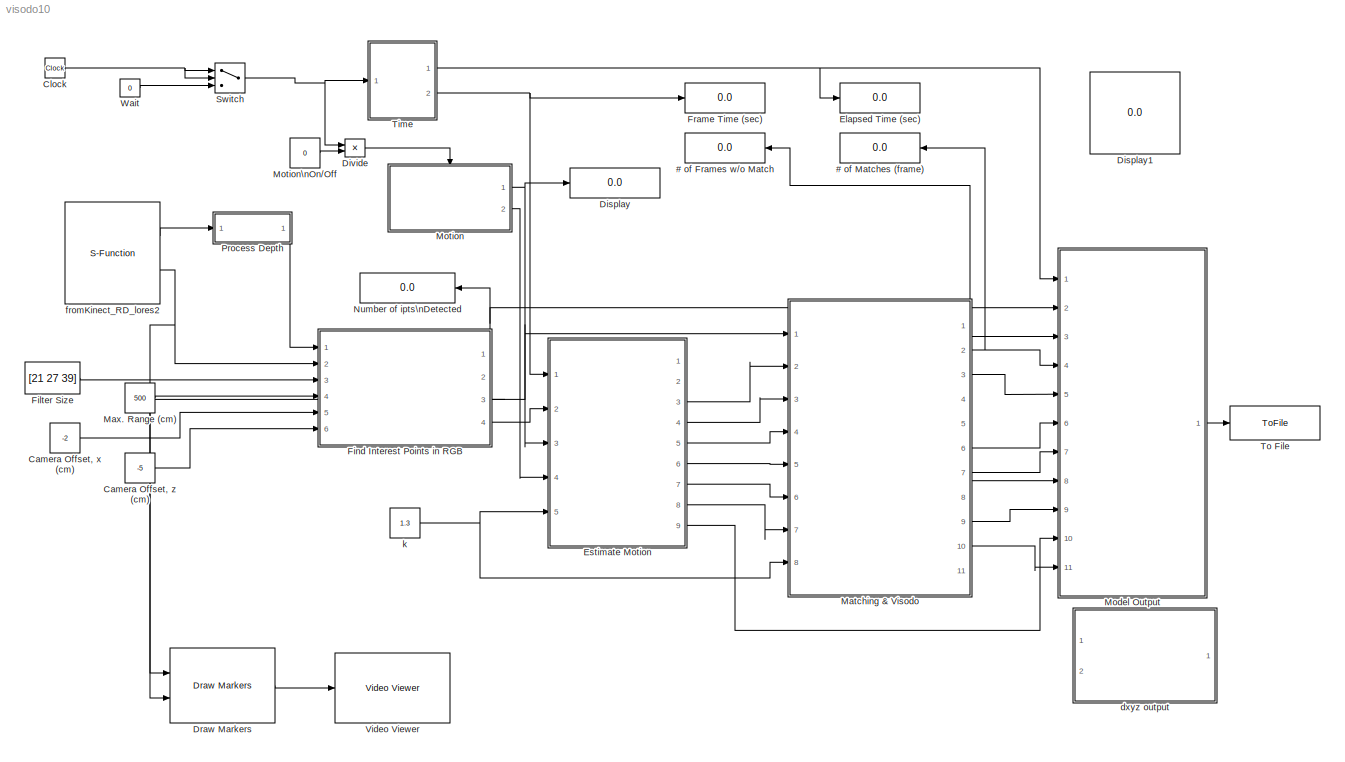
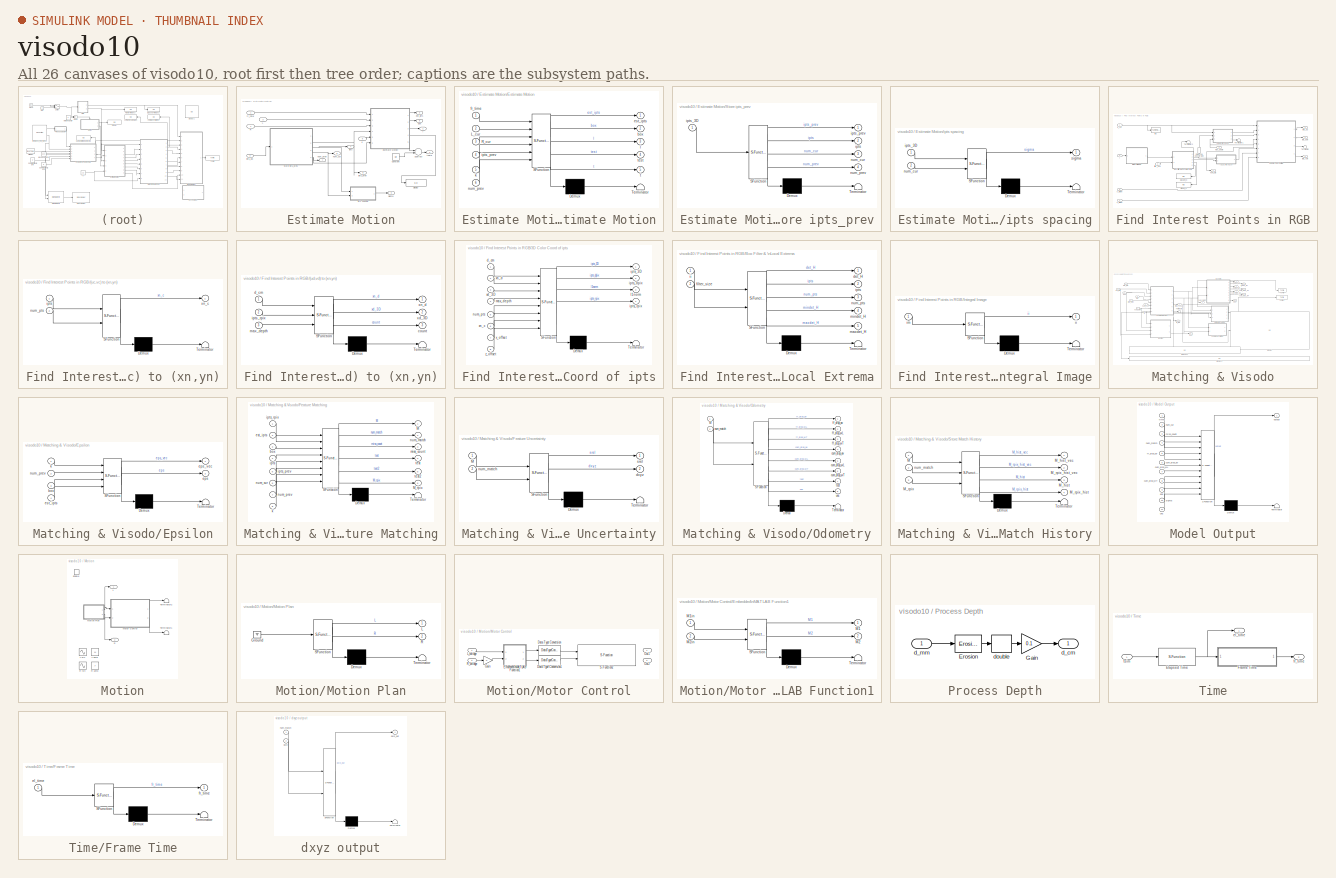
[diagram: thumbnail index - all 26 canvases of the model, root first then tree order]
MODEL visodo10
KIND model
BLOCK [Display] # of Frames w//o Match
  Decimation = 1
  Lockdown = off
  Ports = [1]
  SID = 528
BLOCK [Display] # of Matches (frame)
  Decimation = 1
  Lockdown = off
  Ports = [1]
  SID = 487
BLOCK [Constant] Camera Offset, x (cm)
  OutDataType = fixdt(1, 16)
  OutDataTypeMode = double
  OutDataTypeStr = double
  OutScaling = 2^0
  SID = 645
  Value = -2
BLOCK [Constant] Camera Offset, z (cm)
  OutDataType = fixdt(1, 16)
  OutDataTypeMode = double
  OutDataTypeStr = double
  OutScaling = 2^0
  SID = 644
  Value = -5
BLOCK [Clock] Clock
  Decimation = 10
  SID = 698
BLOCK [Display] Display
  Decimation = 1
  Lockdown = off
  Ports = [1]
  SID = 843
BLOCK [Display] Display1
  Decimation = 1
  Lockdown = off
  Ports = [1]
  SID = 881
BLOCK [Product] Divide
  InputSameDT = off
  Inputs = **
  OutDataType = fixdt(1, 16)
  OutDataTypeMode = Inherit via internal rule
  OutDataTypeStr = Inherit: Inherit via internal rule
  OutScaling = 2^-10
  Ports = [2, 1]
  RndMeth = Floor
  SID = 783
  SaturateOnIntegerOverflow = off
BLOCK [Reference] Draw Markers  REF=viptextngfix/Draw Markers
  DialogController = vipDDGCreate
  DialogControllerArgs = DataTag0
  LockScale = off
  Ports = [2, 1]
  SID = 896
  SourceBlock = viptextngfix/Draw Markers
  SourceType = Draw Markers
  accumFracLength = 14
  accumMode = Same as product output
  accumWordLength = 32
  antialiasing = off
  color = [200 255 100]
  display = Black
  fill = off
  fillClrSource = Specify via dialog
  imagePorts = One multidimensional signal
  inType = Obsolete
  intensity = 200
  memoryFracLength = 15
  memoryMode = Specify word length
  memoryWordLength = 16
  opacity = 0.6
  overflowMode = off
  prodOutputFracLength = 14
  prodOutputMode = Binary point scaling
  prodOutputWordLength = 32
  roundingMode = Floor
  shape = Circle
  size = 3
  viewport = Entire image
BLOCK [Display] Elapsed Time (sec)
  Decimation = 1
  Lockdown = off
  Ports = [1]
  SID = 364
BLOCK [SubSystem] Estimate Motion
  FunctionWithSeparateData = off
  MaskHideContents = off
  MinAlgLoopOccurrences = off
  Opaque = off
  Ports = [5, 9]
  PropExecContextOutsideSubsystem = off
  RTWSystemCode = Auto
  RequestExecContextInheritance = off
  SID = 501
BLOCK [Constant] Estimate Motion/Constant
  OutDataType = fixdt(1, 16)
  OutScaling = 2^0
  SID = 767
  Value = pi/2
BLOCK [Display] Estimate Motion/Display
  Decimation = 1
  Lockdown = off
  Ports = [1]
  SID = 847
BLOCK [SubSystem] Estimate Motion/Estimate Motion
  FunctionWithSeparateData = off
  MaskDescription = Embedded MATLAB block
  MaskDisplay = disp('est_mot');
  MaskHideContents = off
  MaskIconFrame = on
  MaskIconOpaque = off
  MaskIconRotate = none
  MaskIconUnits = autoscale
  MaskPortRotate = default
  MaskSelfModifiable = on
  MaskType = Stateflow
  MinAlgLoopOccurrences = off
  Opaque = off
  PermitHierarchicalResolution = ExplicitOnly
  Ports = [6, 5]
  PropExecContextOutsideSubsystem = off
  RTWSystemCode = Auto
  RequestExecContextInheritance = off
  SID = 494
  TreatAsAtomicUnit = on
BLOCK [Demux] Estimate Motion/Estimate Motion/ Demux 
  Outputs = 1
  Ports = [1, 1]
  SID = 15
BLOCK [S-Function] Estimate Motion/Estimate Motion/ SFunction 
  EnableBusSupport = on
  FunctionName = sf_sfun
  PortCounts = [6 6]
  Ports = [6, 6]
  SID = 14
  Tag = Stateflow S-Function visodo10 7
BLOCK [Terminator] Estimate Motion/Estimate Motion/ Terminator 
  SID = 17
BLOCK [Inport] Estimate Motion/Estimate Motion/L_cur
  IconDisplay = Port number
  Port = 2
  SID = 22
BLOCK [Inport] Estimate Motion/Estimate Motion/R_cur
  IconDisplay = Port number
  Port = 3
  SID = 23
BLOCK [Outport] Estimate Motion/Estimate Motion/box
  IconDisplay = Port number
  Port = 2
  SID = 24
BLOCK [Outport] Estimate Motion/Estimate Motion/est_ipts
  IconDisplay = Port number
  OutDataType = sfix(16)
  OutScaling = 2^0
  SID = 5
BLOCK [Inport] Estimate Motion/Estimate Motion/fr_time
  IconDisplay = Port number
  SID = 21
BLOCK [Inport] Estimate Motion/Estimate Motion/ipts_prev
  IconDisplay = Port number
  Port = 4
  SID = 20
BLOCK [Inport] Estimate Motion/Estimate Motion/k
  IconDisplay = Port number
  Port = 5
  SID = 25
BLOCK [Outport] Estimate Motion/Estimate Motion/l
  IconDisplay = Port number
  Port = 3
  SID = 26
BLOCK [Inport] Estimate Motion/Estimate Motion/num_prev
  IconDisplay = Port number
  Port = 6
  SID = 29
BLOCK [Outport] Estimate Motion/Estimate Motion/t
  IconDisplay = Port number
  Port = 5
  SID = 27
BLOCK [Outport] Estimate Motion/Estimate Motion/test
  IconDisplay = Port number
  Port = 4
  SID = 28
BLOCK [Inport] Estimate Motion/L
  IconDisplay = Port number
  Port = 3
  SID = 640
BLOCK [Inport] Estimate Motion/R
  IconDisplay = Port number
  Port = 4
  SID = 647
BLOCK [SubSystem] Estimate Motion/Store ipts_prev
  FunctionWithSeparateData = off
  MaskDescription = Embedded MATLAB block
  MaskDisplay = disp('store_ipts_prev');
  MaskHideContents = off
  MaskIconFrame = on
  MaskIconOpaque = off
  MaskIconRotate = none
  MaskIconUnits = autoscale
  MaskPortRotate = default
  MaskSelfModifiable = on
  MaskType = Stateflow
  MinAlgLoopOccurrences = off
  Opaque = off
  PermitHierarchicalResolution = ExplicitOnly
  Ports = [1, 4]
  PropExecContextOutsideSubsystem = off
  RTWSystemCode = Auto
  RequestExecContextInheritance = off
  SID = 506
  TreatAsAtomicUnit = on
BLOCK [Demux] Estimate Motion/Store ipts_prev/ Demux 
  Outputs = 1
  Ports = [1, 1]
  SID = 15
BLOCK [S-Function] Estimate Motion/Store ipts_prev/ SFunction 
  EnableBusSupport = on
  FunctionName = sf_sfun
  PortCounts = [1 5]
  Ports = [1, 5]
  SID = 14
  Tag = Stateflow S-Function visodo10 13
BLOCK [Terminator] Estimate Motion/Store ipts_prev/ Terminator 
  SID = 17
BLOCK [Outport] Estimate Motion/Store ipts_prev/ipts
  IconDisplay = Port number
  OutDataType = sfix(16)
  OutScaling = 2^0
  Port = 2
  SID = 5
BLOCK [Inport] Estimate Motion/Store ipts_prev/ipts_3D
  IconDisplay = Port number
  OutDataType = sfix(16)
  OutScaling = 2^0
  SID = 1
BLOCK [Outport] Estimate Motion/Store ipts_prev/ipts_prev
  IconDisplay = Port number
  SID = 18
BLOCK [Outport] Estimate Motion/Store ipts_prev/num_cur
  IconDisplay = Port number
  Port = 3
  SID = 19
BLOCK [Outport] Estimate Motion/Store ipts_prev/num_prev
  IconDisplay = Port number
  Port = 4
  SID = 20
BLOCK [Sum] Estimate Motion/Subtract
  InputSameDT = off
  Inputs = +-
  OutDataType = fixdt(1, 16)
  OutDataTypeMode = Inherit via internal rule
  OutDataTypeStr = Inherit: Inherit via internal rule
  OutScaling = 2^-10
  Ports = [2, 1]
  SID = 766
  SaturateOnIntegerOverflow = off
BLOCK [Outport] Estimate Motion/box
  IconDisplay = Port number
  Port = 8
  SID = 650
BLOCK [Outport] Estimate Motion/est_ipts
  IconDisplay = Port number
  Port = 3
  SID = 503
BLOCK [Inport] Estimate Motion/fr_time
  IconDisplay = Port number
  SID = 524
BLOCK [Outport] Estimate Motion/ipts
  IconDisplay = Port number
  Port = 4
  SID = 509
BLOCK [SubSystem] Estimate Motion/ipts spacing
  FunctionWithSeparateData = off
  MaskDescription = Embedded MATLAB block
  MaskDisplay = disp('spacing');
  MaskHideContents = off
  MaskIconFrame = on
  MaskIconOpaque = off
  MaskIconRotate = none
  MaskIconUnits = autoscale
  MaskPortRotate = default
  MaskSelfModifiable = on
  MaskType = Stateflow
  MinAlgLoopOccurrences = off
  Opaque = off
  PermitHierarchicalResolution = ExplicitOnly
  Ports = [2, 1]
  PropExecContextOutsideSubsystem = off
  RTWSystemCode = Auto
  RequestExecContextInheritance = off
  SID = 715
  TreatAsAtomicUnit = on
BLOCK [Demux] Estimate Motion/ipts spacing/ Demux 
  Outputs = 1
  Ports = [1, 1]
  SID = 15
BLOCK [S-Function] Estimate Motion/ipts spacing/ SFunction 
  EnableBusSupport = on
  FunctionName = sf_sfun
  PortCounts = [2 2]
  Ports = [2, 2]
  SID = 14
  Tag = Stateflow S-Function visodo10 12
BLOCK [Terminator] Estimate Motion/ipts spacing/ Terminator 
  SID = 17
BLOCK [Inport] Estimate Motion/ipts spacing/ipts_3D
  IconDisplay = Port number
  OutDataType = sfix(16)
  OutScaling = 2^0
  SID = 1
BLOCK [Inport] Estimate Motion/ipts spacing/num_cur
  IconDisplay = Port number
  Port = 2
  SID = 19
BLOCK [Outport] Estimate Motion/ipts spacing/sigma
  IconDisplay = Port number
  SID = 18
BLOCK [Inport] Estimate Motion/ipts_3D
  IconDisplay = Port number
  Port = 2
  SID = 504
BLOCK [Outport] Estimate Motion/ipts_prev
  IconDisplay = Port number
  Port = 5
  SID = 505
BLOCK [Inport] Estimate Motion/k
  IconDisplay = Port number
  Port = 5
  SID = 676
BLOCK [Outport] Estimate Motion/l
  IconDisplay = Port number
  SID = 764
BLOCK [Outport] Estimate Motion/num_cur
  IconDisplay = Port number
  Port = 6
  SID = 507
BLOCK [Outport] Estimate Motion/num_prev
  IconDisplay = Port number
  Port = 7
  SID = 508
BLOCK [Outport] Estimate Motion/sigma
  IconDisplay = Port number
  OutDataType = fixdt(1, 16)
  OutScaling = 2^0
  Port = 9
  SID = 716
BLOCK [Outport] Estimate Motion/theta
  IconDisplay = Port number
  Port = 2
  SID = 765
BLOCK [Constant] Filter Size
  OutDataType = fixdt(1, 16)
  OutScaling = 2^0
  SID = 814
  Value = [21 27 39]
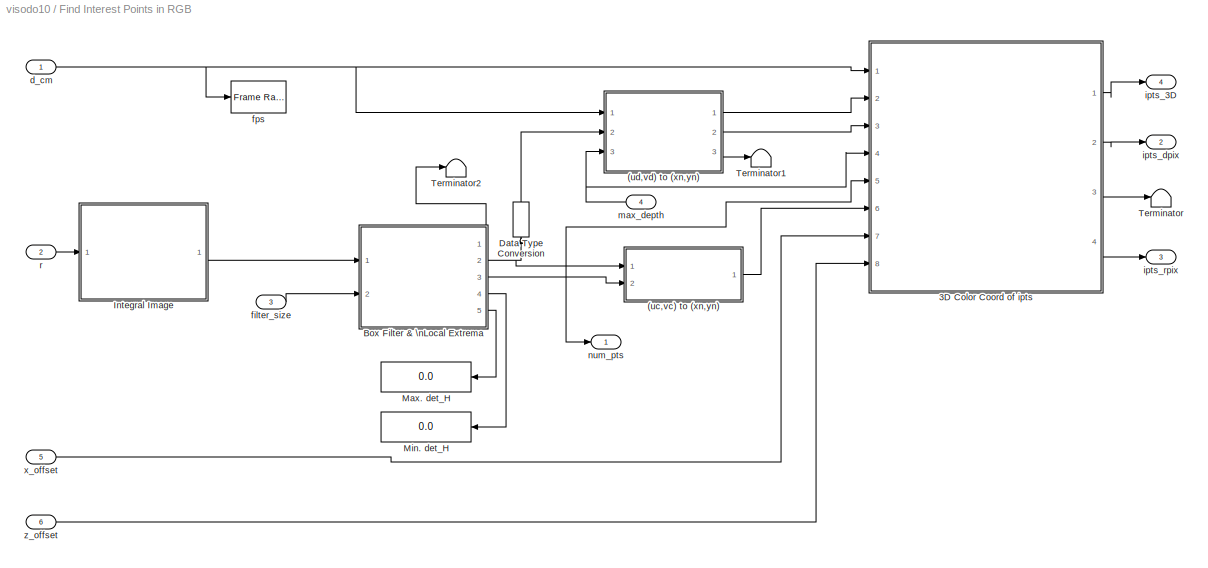
BLOCK [SubSystem] Find Interest Points in RGB
  FunctionWithSeparateData = off
  MaskHideContents = off
  MinAlgLoopOccurrences = off
  Opaque = off
  Ports = [6, 4]
  PropExecContextOutsideSubsystem = off
  RTWSystemCode = Auto
  RequestExecContextInheritance = off
  SID = 249
BLOCK [SubSystem] Find Interest Points in RGB/(uc,vc) to (xn,yn)
  FunctionWithSeparateData = off
  MaskDescription = Embedded MATLAB block
  MaskDisplay = disp('uc_to_xn');
  MaskHideContents = off
  MaskIconFrame = on
  MaskIconOpaque = off
  MaskIconRotate = none
  MaskIconUnits = autoscale
  MaskPortRotate = default
  MaskSelfModifiable = on
  MaskType = Stateflow
  MinAlgLoopOccurrences = off
  Opaque = off
  PermitHierarchicalResolution = ExplicitOnly
  Ports = [2, 1]
  PropExecContextOutsideSubsystem = off
  RTWSystemCode = Auto
  RequestExecContextInheritance = off
  SID = 265
  TreatAsAtomicUnit = on
BLOCK [Demux] Find Interest Points in RGB/(uc,vc) to (xn,yn)/ Demux 
  Outputs = 1
  Ports = [1, 1]
  SID = 15
BLOCK [S-Function] Find Interest Points in RGB/(uc,vc) to (xn,yn)/ SFunction 
  EnableBusSupport = on
  FunctionName = sf_sfun
  PortCounts = [2 2]
  Ports = [2, 2]
  SID = 14
  Tag = Stateflow S-Function visodo10 8
BLOCK [Terminator] Find Interest Points in RGB/(uc,vc) to (xn,yn)/ Terminator 
  SID = 17
BLOCK [Inport] Find Interest Points in RGB/(uc,vc) to (xn,yn)/ipts
  IconDisplay = Port number
  SID = 18
BLOCK [Inport] Find Interest Points in RGB/(uc,vc) to (xn,yn)/num_pts
  IconDisplay = Port number
  Port = 2
  SID = 22
BLOCK [Outport] Find Interest Points in RGB/(uc,vc) to (xn,yn)/xn_c
  IconDisplay = Port number
  OutDataType = sfix(16)
  OutScaling = 2^0
  SID = 5
BLOCK [SubSystem] Find Interest Points in RGB/(ud,vd) to (xn,yn)
  FunctionWithSeparateData = off
  MaskDescription = Embedded MATLAB block
  MaskDisplay = disp('d_to_xn');
  MaskHideContents = off
  MaskIconFrame = on
  MaskIconOpaque = off
  MaskIconRotate = none
  MaskIconUnits = autoscale
  MaskPortRotate = default
  MaskSelfModifiable = on
  MaskType = Stateflow
  MinAlgLoopOccurrences = off
  Opaque = off
  PermitHierarchicalResolution = ExplicitOnly
  Ports = [3, 3]
  PropExecContextOutsideSubsystem = off
  RTWSystemCode = Auto
  RequestExecContextInheritance = off
  SID = 324
  TreatAsAtomicUnit = on
BLOCK [Demux] Find Interest Points in RGB/(ud,vd) to (xn,yn)/ Demux 
  Outputs = 1
  Ports = [1, 1]
  SID = 15
BLOCK [S-Function] Find Interest Points in RGB/(ud,vd) to (xn,yn)/ SFunction 
  EnableBusSupport = on
  FunctionName = sf_sfun
  PortCounts = [3 4]
  Ports = [3, 4]
  SID = 14
  Tag = Stateflow S-Function visodo10 9
BLOCK [Terminator] Find Interest Points in RGB/(ud,vd) to (xn,yn)/ Terminator 
  SID = 17
BLOCK [Outport] Find Interest Points in RGB/(ud,vd) to (xn,yn)/count
  IconDisplay = Port number
  Port = 3
  SID = 22
BLOCK [Inport] Find Interest Points in RGB/(ud,vd) to (xn,yn)/d_cm
  IconDisplay = Port number
  OutDataType = sfix(16)
  OutScaling = 2^0
  SID = 1
BLOCK [Inport] Find Interest Points in RGB/(ud,vd) to (xn,yn)/ipts_rpix
  IconDisplay = Port number
  Port = 2
  SID = 21
BLOCK [Inport] Find Interest Points in RGB/(ud,vd) to (xn,yn)/max_depth
  IconDisplay = Port number
  Port = 3
  SID = 20
BLOCK [Outport] Find Interest Points in RGB/(ud,vd) to (xn,yn)/xd_3D
  IconDisplay = Port number
  Port = 2
  SID = 19
BLOCK [Outport] Find Interest Points in RGB/(ud,vd) to (xn,yn)/xn_d
  IconDisplay = Port number
  OutDataType = sfix(16)
  OutScaling = 2^0
  SID = 5
BLOCK [SubSystem] Find Interest Points in RGB/3D Color Coord of ipts
  FunctionWithSeparateData = off
  MaskDescription = Embedded MATLAB block
  MaskDisplay = disp('ipts_to_3Ddepth');
  MaskHideContents = off
  MaskIconFrame = on
  MaskIconOpaque = off
  MaskIconRotate = none
  MaskIconUnits = autoscale
  MaskPortRotate = default
  MaskSelfModifiable = on
  MaskType = Stateflow
  MinAlgLoopOccurrences = off
  Opaque = off
  PermitHierarchicalResolution = ExplicitOnly
  Ports = [8, 4]
  PropExecContextOutsideSubsystem = off
  RTWSystemCode = Auto
  RequestExecContextInheritance = off
  SID = 325
  TreatAsAtomicUnit = on
BLOCK [Demux] Find Interest Points in RGB/3D Color Coord of ipts/ Demux 
  Outputs = 1
  Ports = [1, 1]
  SID = 15
BLOCK [S-Function] Find Interest Points in RGB/3D Color Coord of ipts/ SFunction 
  EnableBusSupport = on
  FunctionName = sf_sfun
  PortCounts = [8 5]
  Ports = [8, 5]
  SID = 14
  Tag = Stateflow S-Function visodo10 10
BLOCK [Terminator] Find Interest Points in RGB/3D Color Coord of ipts/ Terminator 
  SID = 17
BLOCK [Inport] Find Interest Points in RGB/3D Color Coord of ipts/d_cm
  IconDisplay = Port number
  SID = 25
BLOCK [Outport] Find Interest Points in RGB/3D Color Coord of ipts/ipts_3D
  IconDisplay = Port number
  SID = 37
BLOCK [Outport] Find Interest Points in RGB/3D Color Coord of ipts/ipts_dpix
  IconDisplay = Port number
  Port = 2
  SID = 23
BLOCK [Outport] Find Interest Points in RGB/3D Color Coord of ipts/ipts_rpix
  IconDisplay = Port number
  Port = 4
  SID = 31
BLOCK [Outport] Find Interest Points in RGB/3D Color Coord of ipts/l1norm
  IconDisplay = Port number
  Port = 3
  SID = 27
BLOCK [Inport] Find Interest Points in RGB/3D Color Coord of ipts/max_depth
  IconDisplay = Port number
  Port = 4
  SID = 26
BLOCK [Inport] Find Interest Points in RGB/3D Color Coord of ipts/num_pts
  IconDisplay = Port number
  Port = 5
  SID = 19
BLOCK [Inport] Find Interest Points in RGB/3D Color Coord of ipts/x_offset
  IconDisplay = Port number
  Port = 7
  SID = 32
BLOCK [Inport] Find Interest Points in RGB/3D Color Coord of ipts/xd_3D
  IconDisplay = Port number
  Port = 3
  SID = 20
BLOCK [Inport] Find Interest Points in RGB/3D Color Coord of ipts/xn_c
  IconDisplay = Port number
  Port = 6
  SID = 18
BLOCK [Inport] Find Interest Points in RGB/3D Color Coord of ipts/xn_d
  IconDisplay = Port number
  OutDataType = sfix(16)
  OutScaling = 2^0
  Port = 2
  SID = 1
BLOCK [Inport] Find Interest Points in RGB/3D Color Coord of ipts/z_offset
  IconDisplay = Port number
  Port = 8
  SID = 33
BLOCK [SubSystem] Find Interest Points in RGB/Box Filter & \nLocal Extrema
  FunctionWithSeparateData = off
  MaskDescription = Embedded MATLAB block
  MaskDisplay = disp('box_filter');
  MaskHideContents = off
  MaskIconFrame = on
  MaskIconOpaque = off
  MaskIconRotate = none
  MaskIconUnits = autoscale
  MaskPortRotate = default
  MaskSelfModifiable = on
  MaskType = Stateflow
  MinAlgLoopOccurrences = off
  Opaque = off
  PermitHierarchicalResolution = ExplicitOnly
  Ports = [2, 5]
  PropExecContextOutsideSubsystem = off
  RTWSystemCode = Auto
  RequestExecContextInheritance = off
  SID = 241
  TreatAsAtomicUnit = on
BLOCK [Demux] Find Interest Points in RGB/Box Filter & \nLocal Extrema/ Demux 
  Outputs = 1
  Ports = [1, 1]
  SID = 15
BLOCK [S-Function] Find Interest Points in RGB/Box Filter & \nLocal Extrema/ SFunction 
  EnableBusSupport = on
  FunctionName = sf_sfun
  PortCounts = [2 6]
  Ports = [2, 6]
  SID = 14
  Tag = Stateflow S-Function visodo10 5
BLOCK [Terminator] Find Interest Points in RGB/Box Filter & \nLocal Extrema/ Terminator 
  SID = 17
BLOCK [Outport] Find Interest Points in RGB/Box Filter & \nLocal Extrema/det_H
  IconDisplay = Port number
  SID = 29
BLOCK [Inport] Find Interest Points in RGB/Box Filter & \nLocal Extrema/filter_size
  IconDisplay = Port number
  Port = 2
  SID = 22
BLOCK [Inport] Find Interest Points in RGB/Box Filter & \nLocal Extrema/ii
  IconDisplay = Port number
  OutDataType = sfix(16)
  OutScaling = 2^0
  SID = 1
BLOCK [Outport] Find Interest Points in RGB/Box Filter & \nLocal Extrema/ipts
  IconDisplay = Port number
  Port = 2
  SID = 24
BLOCK [Outport] Find Interest Points in RGB/Box Filter & \nLocal Extrema/maxdet_H
  IconDisplay = Port number
  Port = 5
  SID = 28
BLOCK [Outport] Find Interest Points in RGB/Box Filter & \nLocal Extrema/mindet_H
  IconDisplay = Port number
  Port = 4
  SID = 27
BLOCK [Outport] Find Interest Points in RGB/Box Filter & \nLocal Extrema/num_pts
  IconDisplay = Port number
  Port = 3
  SID = 23
BLOCK [DataTypeConversion] Find Interest Points in RGB/Data Type Conversion
  OutDataType = fixdt(1, 16)
  OutScaling = 2^0
  RndMeth = Floor
  SID = 695
  SaturateOnIntegerOverflow = off
BLOCK [SubSystem] Find Interest Points in RGB/Integral Image
  FunctionWithSeparateData = off
  MaskDescription = Embedded MATLAB block
  MaskDisplay = disp('integral_image');
  MaskHideContents = off
  MaskIconFrame = on
  MaskIconOpaque = off
  MaskIconRotate = none
  MaskIconUnits = autoscale
  MaskPortRotate = default
  MaskSelfModifiable = on
  MaskType = Stateflow
  MinAlgLoopOccurrences = off
  Opaque = off
  PermitHierarchicalResolution = ExplicitOnly
  Ports = [1, 1]
  PropExecContextOutsideSubsystem = off
  RTWSystemCode = Auto
  RequestExecContextInheritance = off
  SID = 240
  TreatAsAtomicUnit = on
BLOCK [Demux] Find Interest Points in RGB/Integral Image/ Demux 
  Outputs = 1
  Ports = [1, 1]
  SID = 15
BLOCK [S-Function] Find Interest Points in RGB/Integral Image/ SFunction 
  EnableBusSupport = on
  FunctionName = sf_sfun
  PortCounts = [1 2]
  Ports = [1, 2]
  SID = 14
  Tag = Stateflow S-Function visodo10 3
BLOCK [Terminator] Find Interest Points in RGB/Integral Image/ Terminator 
  SID = 17
BLOCK [Outport] Find Interest Points in RGB/Integral Image/ii
  IconDisplay = Port number
  OutDataType = sfix(16)
  OutScaling = 2^0
  SID = 5
BLOCK [Inport] Find Interest Points in RGB/Integral Image/im
  IconDisplay = Port number
  OutDataType = sfix(16)
  OutScaling = 2^0
  SID = 1
BLOCK [Display] Find Interest Points in RGB/Max. det_H
  Decimation = 1
  Lockdown = off
  Ports = [1]
  SID = 461
BLOCK [Display] Find Interest Points in RGB/Min. det_H
  Decimation = 1
  Lockdown = off
  Ports = [1]
  SID = 460
BLOCK [Terminator] Find Interest Points in RGB/Terminator
  SID = 731
BLOCK [Terminator] Find Interest Points in RGB/Terminator1
  SID = 732
BLOCK [Terminator] Find Interest Points in RGB/Terminator2
  SID = 733
BLOCK [Inport] Find Interest Points in RGB/d_cm
  IconDisplay = Port number
  SID = 320
BLOCK [Inport] Find Interest Points in RGB/filter_size
  IconDisplay = Port number
  OutDataType = fixdt(1, 16)
  OutScaling = 2^0
  Port = 3
  SID = 318
BLOCK [Reference] Find Interest Points in RGB/fps  REF=vipsnks/Frame Rate\nDisplay
  DialogController = vipDDGCreate
  DialogControllerArgs = DataTag1
  Ports = [1]
  SID = 452
  SourceBlock = vipsnks/Frame Rate\nDisplay
  SourceType = Frame Rate Display
  UpdateRate = 10
BLOCK [Outport] Find Interest Points in RGB/ipts_3D
  IconDisplay = Port number
  Port = 4
  SID = 327
BLOCK [Outport] Find Interest Points in RGB/ipts_dpix
  IconDisplay = Port number
  Port = 2
  SID = 326
BLOCK [Outport] Find Interest Points in RGB/ipts_rpix
  IconDisplay = Port number
  Port = 3
  SID = 328
BLOCK [Inport] Find Interest Points in RGB/max_depth
  IconDisplay = Port number
  OutDataType = fixdt(1, 16)
  OutScaling = 2^0
  Port = 4
  SID = 332
BLOCK [Outport] Find Interest Points in RGB/num_pts
  IconDisplay = Port number
  SID = 252
BLOCK [Inport] Find Interest Points in RGB/r
  IconDisplay = Port number
  Port = 2
  SID = 251
BLOCK [Inport] Find Interest Points in RGB/x_offset
  IconDisplay = Port number
  OutDataType = fixdt(1, 16)
  OutScaling = 2^0
  Port = 5
  SID = 648
BLOCK [Inport] Find Interest Points in RGB/z_offset
  IconDisplay = Port number
  OutDataType = fixdt(1, 16)
  OutScaling = 2^0
  Port = 6
  SID = 649
BLOCK [Display] Frame Time (sec)
  Decimation = 1
  Lockdown = off
  Ports = [1]
  SID = 523
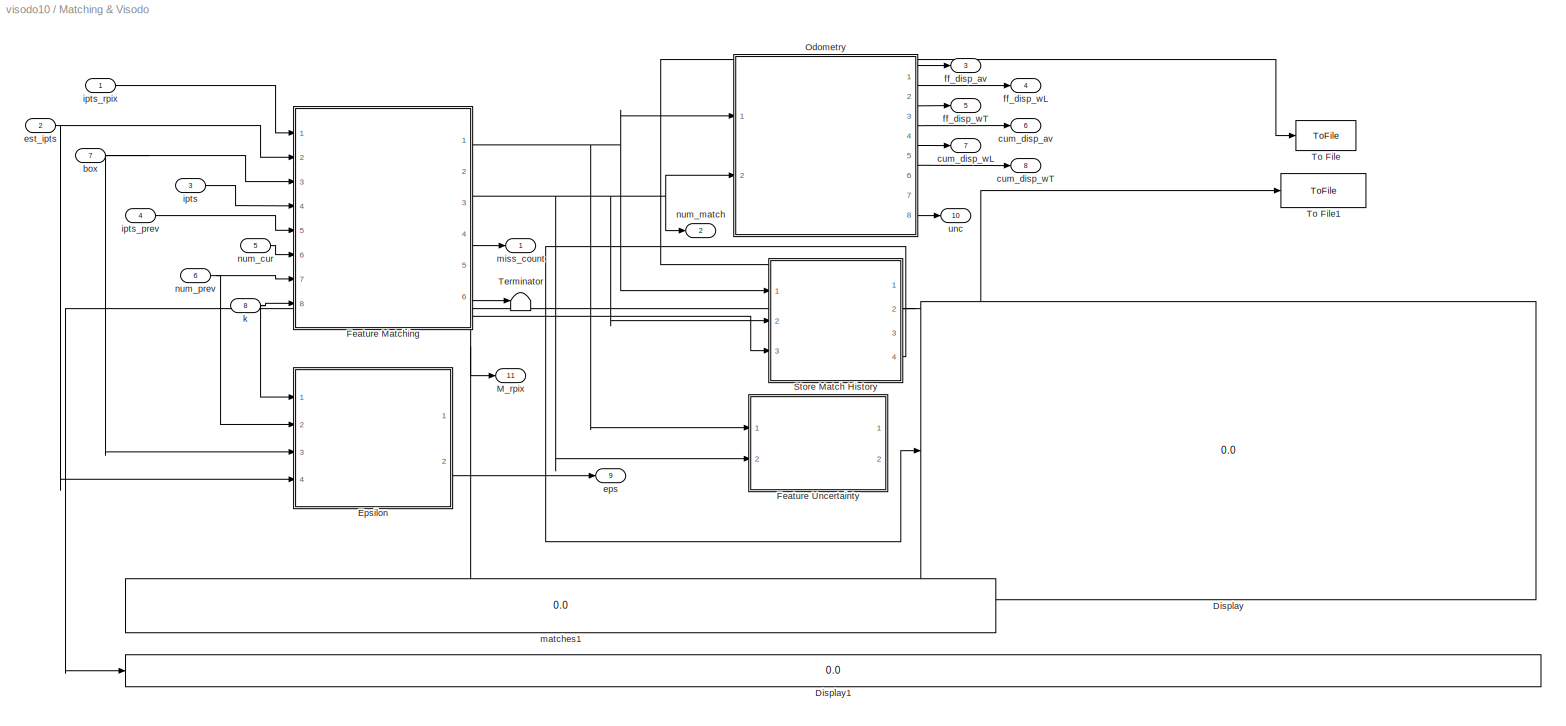
BLOCK [SubSystem] Matching & Visodo
  FunctionWithSeparateData = off
  MaskHideContents = off
  MinAlgLoopOccurrences = off
  Opaque = off
  Ports = [8, 11]
  PropExecContextOutsideSubsystem = off
  RTWSystemCode = Auto
  RequestExecContextInheritance = off
  SID = 385
BLOCK [Display] Matching & Visodo/Display
  Decimation = 1
  Lockdown = off
  Ports = [1]
  SID = 898
BLOCK [Display] Matching & Visodo/Display1
  Decimation = 1
  Lockdown = off
  Ports = [1]
  SID = 899
BLOCK [SubSystem] Matching & Visodo/Epsilon
  FunctionWithSeparateData = off
  MaskDescription = Embedded MATLAB block
  MaskDisplay = disp('calc_eps');
  MaskHideContents = off
  MaskIconFrame = on
  MaskIconOpaque = off
  MaskIconRotate = none
  MaskIconUnits = autoscale
  MaskPortRotate = default
  MaskSelfModifiable = on
  MaskType = Stateflow
  MinAlgLoopOccurrences = off
  Opaque = off
  PermitHierarchicalResolution = ExplicitOnly
  Ports = [4, 2]
  PropExecContextOutsideSubsystem = off
  RTWSystemCode = Auto
  RequestExecContextInheritance = off
  SID = 707
  TreatAsAtomicUnit = on
BLOCK [Demux] Matching & Visodo/Epsilon/ Demux 
  Outputs = 1
  Ports = [1, 1]
  SID = 15
BLOCK [S-Function] Matching & Visodo/Epsilon/ SFunction 
  EnableBusSupport = on
  FunctionName = sf_sfun
  PortCounts = [4 3]
  Ports = [4, 3]
  SID = 14
  Tag = Stateflow S-Function visodo10 4
BLOCK [Terminator] Matching & Visodo/Epsilon/ Terminator 
  SID = 17
BLOCK [Inport] Matching & Visodo/Epsilon/box
  IconDisplay = Port number
  Port = 3
  SID = 18
BLOCK [Outport] Matching & Visodo/Epsilon/eps
  IconDisplay = Port number
  OutDataType = sfix(16)
  OutScaling = 2^0
  Port = 2
  SID = 5
BLOCK [Outport] Matching & Visodo/Epsilon/eps_vec
  IconDisplay = Port number
  SID = 21
BLOCK [Inport] Matching & Visodo/Epsilon/est_ipts
  IconDisplay = Port number
  Port = 4
  SID = 19
BLOCK [Inport] Matching & Visodo/Epsilon/k
  IconDisplay = Port number
  SID = 20
BLOCK [Inport] Matching & Visodo/Epsilon/num_prev
  IconDisplay = Port number
  OutDataType = sfix(16)
  OutScaling = 2^0
  Port = 2
  SID = 1
BLOCK [SubSystem] Matching & Visodo/Feature Matching
  FunctionWithSeparateData = off
  MaskDescription = Embedded MATLAB block
  MaskDisplay = disp('feat_match');
  MaskHideContents = off
  MaskIconFrame = on
  MaskIconOpaque = off
  MaskIconRotate = none
  MaskIconUnits = autoscale
  MaskPortRotate = default
  MaskSelfModifiable = on
  MaskType = Stateflow
  MinAlgLoopOccurrences = off
  Opaque = off
  PermitHierarchicalResolution = ExplicitOnly
  Ports = [8, 6]
  PropExecContextOutsideSubsystem = off
  RTWSystemCode = Auto
  RequestExecContextInheritance = off
  SID = 472
  TreatAsAtomicUnit = on
BLOCK [Demux] Matching & Visodo/Feature Matching/ Demux 
  Outputs = 1
  Ports = [1, 1]
  SID = 15
BLOCK [S-Function] Matching & Visodo/Feature Matching/ SFunction 
  EnableBusSupport = on
  FunctionName = sf_sfun
  PortCounts = [8 7]
  Ports = [8, 7]
  SID = 14
  Tag = Stateflow S-Function visodo10 11
BLOCK [Terminator] Matching & Visodo/Feature Matching/ Terminator 
  SID = 17
BLOCK [Outport] Matching & Visodo/Feature Matching/M
  IconDisplay = Port number
  SID = 25
BLOCK [Outport] Matching & Visodo/Feature Matching/M_rpix
  IconDisplay = Port number
  Port = 6
  SID = 37
BLOCK [Inport] Matching & Visodo/Feature Matching/box
  IconDisplay = Port number
  Port = 3
  SID = 21
BLOCK [Inport] Matching & Visodo/Feature Matching/est_ipts
  IconDisplay = Port number
  Port = 2
  SID = 33
BLOCK [Inport] Matching & Visodo/Feature Matching/ipts
  IconDisplay = Port number
  Port = 4
  SID = 28
BLOCK [Inport] Matching & Visodo/Feature Matching/ipts_prev
  IconDisplay = Port number
  Port = 5
  SID = 26
BLOCK [Inport] Matching & Visodo/Feature Matching/ipts_rpix
  IconDisplay = Port number
  SID = 35
BLOCK [Inport] Matching & Visodo/Feature Matching/k
  IconDisplay = Port number
  Port = 8
  SID = 34
BLOCK [Outport] Matching & Visodo/Feature Matching/miss_count
  IconDisplay = Port number
  Port = 3
  SID = 32
BLOCK [Inport] Matching & Visodo/Feature Matching/num_cur
  IconDisplay = Port number
  OutDataType = sfix(16)
  OutScaling = 2^0
  Port = 6
  SID = 1
BLOCK [Outport] Matching & Visodo/Feature Matching/num_match
  IconDisplay = Port number
  Port = 2
  SID = 24
BLOCK [Inport] Matching & Visodo/Feature Matching/num_prev
  IconDisplay = Port number
  Port = 7
  SID = 29
BLOCK [Outport] Matching & Visodo/Feature Matching/test
  IconDisplay = Port number
  Port = 4
  SID = 31
BLOCK [Outport] Matching & Visodo/Feature Matching/test2
  IconDisplay = Port number
  Port = 5
  SID = 38
BLOCK [SubSystem] Matching & Visodo/Feature Uncertainty
  FunctionWithSeparateData = off
  MaskDescription = Embedded MATLAB block
  MaskDisplay = disp('ipts_stats');
  MaskHideContents = off
  MaskIconFrame = on
  MaskIconOpaque = off
  MaskIconRotate = none
  MaskIconUnits = autoscale
  MaskPortRotate = default
  MaskSelfModifiable = on
  MaskType = Stateflow
  MinAlgLoopOccurrences = off
  Opaque = off
  PermitHierarchicalResolution = ExplicitOnly
  Ports = [2, 2]
  PropExecContextOutsideSubsystem = off
  RTWSystemCode = Auto
  RequestExecContextInheritance = off
  SID = 841
  TreatAsAtomicUnit = on
BLOCK [Demux] Matching & Visodo/Feature Uncertainty/ Demux 
  Outputs = 1
  Ports = [1, 1]
  SID = 15
BLOCK [S-Function] Matching & Visodo/Feature Uncertainty/ SFunction 
  EnableBusSupport = on
  FunctionName = sf_sfun
  PortCounts = [2 3]
  Ports = [2, 3]
  SID = 14
  Tag = Stateflow S-Function visodo10 14
BLOCK [Terminator] Matching & Visodo/Feature Uncertainty/ Terminator 
  SID = 17
BLOCK [Inport] Matching & Visodo/Feature Uncertainty/M
  IconDisplay = Port number
  OutDataType = sfix(16)
  OutScaling = 2^0
  SID = 1
BLOCK [Outport] Matching & Visodo/Feature Uncertainty/dxyz
  IconDisplay = Port number
  Port = 2
  SID = 22
BLOCK [Inport] Matching & Visodo/Feature Uncertainty/num_match
  IconDisplay = Port number
  Port = 2
  SID = 21
BLOCK [Outport] Matching & Visodo/Feature Uncertainty/srel
  IconDisplay = Port number
  OutDataType = sfix(16)
  OutScaling = 2^0
  SID = 5
BLOCK [Outport] Matching & Visodo/M_rpix
  IconDisplay = Port number
  Port = 11
  SID = 882
BLOCK [SubSystem] Matching & Visodo/Odometry
  FunctionWithSeparateData = off
  MaskDescription = Embedded MATLAB block
  MaskDisplay = disp('odometry');
  MaskHideContents = off
  MaskIconFrame = on
  MaskIconOpaque = off
  MaskIconRotate = none
  MaskIconUnits = autoscale
  MaskPortRotate = default
  MaskSelfModifiable = on
  MaskType = Stateflow
  MinAlgLoopOccurrences = off
  Opaque = off
  PermitHierarchicalResolution = ExplicitOnly
  Ports = [2, 8]
  PropExecContextOutsideSubsystem = off
  RTWSystemCode = Auto
  RequestExecContextInheritance = off
  SID = 480
  TreatAsAtomicUnit = on
BLOCK [Demux] Matching & Visodo/Odometry/ Demux 
  Outputs = 1
  Ports = [1, 1]
  SID = 15
BLOCK [S-Function] Matching & Visodo/Odometry/ SFunction 
  EnableBusSupport = on
  FunctionName = sf_sfun
  PortCounts = [2 9]
  Ports = [2, 9]
  SID = 14
  Tag = Stateflow S-Function visodo10 6
BLOCK [Terminator] Matching & Visodo/Odometry/ Terminator 
  SID = 17
BLOCK [Inport] Matching & Visodo/Odometry/M
  IconDisplay = Port number
  OutDataType = sfix(16)
  OutScaling = 2^0
  SID = 1
BLOCK [Outport] Matching & Visodo/Odometry/cum_disp_av
  IconDisplay = Port number
  Port = 4
  SID = 26
BLOCK [Outport] Matching & Visodo/Odometry/cum_disp_wL
  IconDisplay = Port number
  Port = 5
  SID = 28
BLOCK [Outport] Matching & Visodo/Odometry/cum_disp_wT
  IconDisplay = Port number
  Port = 6
  SID = 29
BLOCK [Outport] Matching & Visodo/Odometry/ff_disp_av
  IconDisplay = Port number
  OutDataType = sfix(16)
  OutScaling = 2^0
  SID = 5
BLOCK [Outport] Matching & Visodo/Odometry/ff_disp_wL
  IconDisplay = Port number
  Port = 2
  SID = 18
BLOCK [Outport] Matching & Visodo/Odometry/ff_disp_wT
  IconDisplay = Port number
  Port = 3
  SID = 27
BLOCK [Inport] Matching & Visodo/Odometry/num_match
  IconDisplay = Port number
  Port = 2
  SID = 19
BLOCK [Outport] Matching & Visodo/Odometry/test
  IconDisplay = Port number
  Port = 7
  SID = 22
BLOCK [Outport] Matching & Visodo/Odometry/unc
  IconDisplay = Port number
  Port = 8
  SID = 30
BLOCK [SubSystem] Matching & Visodo/Store Match History
  FunctionWithSeparateData = off
  MaskDescription = Embedded MATLAB block
  MaskDisplay = disp('match_hist');
  MaskHideContents = off
  MaskIconFrame = on
  MaskIconOpaque = off
  MaskIconRotate = none
  MaskIconUnits = autoscale
  MaskPortRotate = default
  MaskSelfModifiable = on
  MaskType = Stateflow
  MinAlgLoopOccurrences = off
  Opaque = off
  PermitHierarchicalResolution = ExplicitOnly
  Ports = [3, 4]
  PropExecContextOutsideSubsystem = off
  RTWSystemCode = Auto
  RequestExecContextInheritance = off
  SID = 865
  TreatAsAtomicUnit = on
BLOCK [Demux] Matching & Visodo/Store Match History/ Demux 
  Outputs = 1
  Ports = [1, 1]
  SID = 15
BLOCK [S-Function] Matching & Visodo/Store Match History/ SFunction 
  EnableBusSupport = on
  FunctionName = sf_sfun
  PortCounts = [3 5]
  Ports = [3, 5]
  SID = 14
  Tag = Stateflow S-Function visodo10 17
BLOCK [Terminator] Matching & Visodo/Store Match History/ Terminator 
  SID = 17
BLOCK [Inport] Matching & Visodo/Store Match History/M
  IconDisplay = Port number
  OutDataType = sfix(16)
  OutScaling = 2^0
  SID = 1
BLOCK [Outport] Matching & Visodo/Store Match History/M_hist
  IconDisplay = Port number
  OutDataType = sfix(16)
  OutScaling = 2^0
  Port = 3
  SID = 5
BLOCK [Outport] Matching & Visodo/Store Match History/M_hist_vec
  IconDisplay = Port number
  SID = 21
BLOCK [Inport] Matching & Visodo/Store Match History/M_rpix
  IconDisplay = Port number
  Port = 3
  SID = 22
BLOCK [Outport] Matching & Visodo/Store Match History/M_rpix_hist
  IconDisplay = Port number
  Port = 4
  SID = 20
BLOCK [Outport] Matching & Visodo/Store Match History/M_rpix_hist_vec
  IconDisplay = Port number
  Port = 2
  SID = 23
BLOCK [Inport] Matching & Visodo/Store Match History/num_match
  IconDisplay = Port number
  Port = 2
  SID = 19
BLOCK [Terminator] Matching & Visodo/Terminator
  SID = 729
BLOCK [ToFile] Matching & Visodo/To File
  Filename = M_hist.mat
  MatrixName = data
  SID = 876
BLOCK [ToFile] Matching & Visodo/To File1
  Filename = M_rpix_hist.mat
  MatrixName = data
  SID = 897
BLOCK [Inport] Matching & Visodo/box
  IconDisplay = Port number
  Port = 7
  SID = 392
BLOCK [Outport] Matching & Visodo/cum_disp_av
  IconDisplay = Port number
  Port = 6
  SID = 878
BLOCK [Outport] Matching & Visodo/cum_disp_wL
  IconDisplay = Port number
  Port = 7
  SID = 879
BLOCK [Outport] Matching & Visodo/cum_disp_wT
  IconDisplay = Port number
  Port = 8
  SID = 880
BLOCK [Outport] Matching & Visodo/eps
  IconDisplay = Port number
  OutDataType = fixdt(1, 16)
  OutScaling = 2^0
  Port = 9
  SID = 747
BLOCK [Inport] Matching & Visodo/est_ipts
  IconDisplay = Port number
  Port = 2
  SID = 651
BLOCK [Outport] Matching & Visodo/ff_disp_av
  IconDisplay = Port number
  Port = 3
  SID = 388
BLOCK [Outport] Matching & Visodo/ff_disp_wL
  IconDisplay = Port number
  Port = 4
  SID = 482
BLOCK [Outport] Matching & Visodo/ff_disp_wT
  IconDisplay = Port number
  Port = 5
  SID = 877
BLOCK [Inport] Matching & Visodo/ipts
  IconDisplay = Port number
  Port = 3
  SID = 387
BLOCK [Inport] Matching & Visodo/ipts_prev
  IconDisplay = Port number
  Port = 4
  SID = 499
BLOCK [Inport] Matching & Visodo/ipts_rpix
  IconDisplay = Port number
  OutDataType = fixdt(1, 16)
  OutScaling = 2^0
  SID = 861
BLOCK [Inport] Matching & Visodo/k
  IconDisplay = Port number
  OutDataType = fixdt(1, 16)
  OutScaling = 2^0
  Port = 8
  SID = 702
BLOCK [Display] Matching & Visodo/matches1
  Decimation = 1
  Lockdown = off
  Ports = [1]
  SID = 890
BLOCK [Outport] Matching & Visodo/miss_count
  IconDisplay = Port number
  SID = 527
BLOCK [Inport] Matching & Visodo/num_cur
  IconDisplay = Port number
  Port = 5
  SID = 510
BLOCK [Outport] Matching & Visodo/num_match
  IconDisplay = Port number
  Port = 2
  SID = 486
BLOCK [Inport] Matching & Visodo/num_prev
  IconDisplay = Port number
  Port = 6
  SID = 511
BLOCK [Outport] Matching & Visodo/unc
  IconDisplay = Port number
  Port = 10
  SID = 836
BLOCK [Constant] Max. Range (cm)
  OutDataType = fixdt(1, 16)
  OutScaling = 2^0
  SID = 331
  Value = 500
BLOCK [SubSystem] Model Output
  FunctionWithSeparateData = off
  MaskDescription = Embedded MATLAB block
  MaskDisplay = disp('model_output');
  MaskHideContents = off
  MaskIconFrame = on
  MaskIconOpaque = off
  MaskIconRotate = none
  MaskIconUnits = autoscale
  MaskPortRotate = default
  MaskSelfModifiable = on
  MaskType = Stateflow
  MinAlgLoopOccurrences = off
  Opaque = off
  PermitHierarchicalResolution = ExplicitOnly
  Ports = [11, 1]
  PropExecContextOutsideSubsystem = off
  RTWSystemCode = Auto
  RequestExecContextInheritance = off
  SID = 812
  TreatAsAtomicUnit = on
BLOCK [Demux] Model Output/ Demux 
  Outputs = 1
  Ports = [1, 1]
  SID = 15
BLOCK [S-Function] Model Output/ SFunction 
  EnableBusSupport = on
  FunctionName = sf_sfun
  PortCounts = [11 2]
  Ports = [11, 2]
  SID = 14
  Tag = Stateflow S-Function visodo10 2
BLOCK [Terminator] Model Output/ Terminator 
  SID = 17
BLOCK [Inport] Model Output/cum_disp_av
  IconDisplay = Port number
  Port = 6
  SID = 38
BLOCK [Inport] Model Output/cum_disp_wL
  IconDisplay = Port number
  Port = 7
  SID = 46
BLOCK [Inport] Model Output/cum_disp_wT
  IconDisplay = Port number
  Port = 8
  SID = 47
BLOCK [Inport] Model Output/eps
  IconDisplay = Port number
  Port = 9
  SID = 39
BLOCK [Inport] Model Output/ff_disp_av
  IconDisplay = Port number
  Port = 5
  SID = 23
BLOCK [Inport] Model Output/miss_count
  IconDisplay = Port number
  Port = 3
  SID = 32
BLOCK [Inport] Model Output/num_cur
  IconDisplay = Port number
  Port = 2
  SID = 35
BLOCK [Inport] Model Output/num_match
  IconDisplay = Port number
  Port = 4
  SID = 24
BLOCK [Outport] Model Output/output
  IconDisplay = Port number
  OutDataType = sfix(16)
  OutScaling = 2^0
  SID = 5
BLOCK [Inport] Model Output/sigma
  IconDisplay = Port number
  Port = 10
  SID = 43
BLOCK [Inport] Model Output/time
  IconDisplay = Port number
  SID = 18
BLOCK [Inport] Model Output/unc
  IconDisplay = Port number
  Port = 11
  SID = 48
BLOCK [SubSystem] Motion
  FunctionWithSeparateData = off
  MaskHideContents = off
  MinAlgLoopOccurrences = off
  Opaque = off
  Ports = [0, 2, 1]
  PropExecContextOutsideSubsystem = off
  RTWSystemCode = Auto
  RequestExecContextInheritance = off
  SID = 784
BLOCK [EnablePort] Motion/Enable
  Ports = []
  SID = 785
BLOCK [Outport] Motion/L
  IconDisplay = Port number
  InitialOutput = 0
  OutDataType = fixdt(1, 16)
  OutScaling = 2^0
  SID = 800
BLOCK [Constant] Motion/L-amp
  OutDataType = fixdt(1, 16)
  OutScaling = 2^0
  SID = 816
  Value = 1.4
BLOCK [Sin] Motion/L-sin
  Amplitude = 1.2
  Bias = 2
  Frequency = 2*pi/60
  Offset = 0
  Phase = -pi/2+.9
  Ports = [0, 1]
  SID = 786
  SampleTime = 1
  Samples = 10
BLOCK [SubSystem] Motion/Motion Plan
  FunctionWithSeparateData = off
  MaskDescription = Embedded MATLAB block
  MaskDisplay = disp('motion');
  MaskHideContents = off
  MaskIconFrame = on
  MaskIconOpaque = off
  MaskIconRotate = none
  MaskIconUnits = autoscale
  MaskPortRotate = default
  MaskSelfModifiable = on
  MaskType = Stateflow
  MinAlgLoopOccurrences = off
  Opaque = off
  PermitHierarchicalResolution = ExplicitOnly
  Ports = [0, 2]
  PropExecContextOutsideSubsystem = off
  RTWSystemCode = Auto
  RequestExecContextInheritance = off
  SID = 854
  TreatAsAtomicUnit = on
BLOCK [Demux] Motion/Motion Plan/ Demux 
  Outputs = 1
  Ports = [1, 1]
  SID = 15
BLOCK [Ground] Motion/Motion Plan/ Ground 
  SID = 19
BLOCK [S-Function] Motion/Motion Plan/ SFunction 
  EnableBusSupport = on
  FunctionName = sf_sfun
  PortCounts = [1 3]
  Ports = [1, 3]
  SID = 14
  Tag = Stateflow S-Function visodo10 16
BLOCK [Terminator] Motion/Motion Plan/ Terminator 
  SID = 17
BLOCK [Outport] Motion/Motion Plan/L
  IconDisplay = Port number
  OutDataType = sfix(16)
  OutScaling = 2^0
  SID = 5
BLOCK [Outport] Motion/Motion Plan/R
  IconDisplay = Port number
  Port = 2
  SID = 18
BLOCK [SubSystem] Motion/Motor Control
  FunctionWithSeparateData = off
  MaskHideContents = off
  MinAlgLoopOccurrences = off
  Opaque = off
  Ports = [2, 2]
  PropExecContextOutsideSubsystem = off
  RTWSystemCode = Auto
  RequestExecContextInheritance = off
  SID = 787
BLOCK [DataTypeConversion] Motion/Motor Control/Data Type Conversion
  OutDataType = fixdt(1, 16)
  OutDataTypeMode = uint8
  OutDataTypeStr = uint8
  OutScaling = 2^0
  RndMeth = Floor
  SID = 790
  SaturateOnIntegerOverflow = off
BLOCK [DataTypeConversion] Motion/Motor Control/Data Type Conversion1
  OutDataType = fixdt(1, 16)
  OutDataTypeMode = uint8
  OutDataTypeStr = uint8
  OutScaling = 2^0
  RndMeth = Floor
  SID = 791
  SaturateOnIntegerOverflow = off
BLOCK [SubSystem] Motion/Motor Control/Embedded\nMATLAB Function1
  FunctionWithSeparateData = off
  MaskDescription = Embedded MATLAB block
  MaskDisplay = disp('MotorPackets');
  MaskHideContents = off
  MaskIconFrame = on
  MaskIconOpaque = off
  MaskIconRotate = none
  MaskIconUnits = autoscale
  MaskPortRotate = default
  MaskSelfModifiable = on
  MaskType = Stateflow
  MinAlgLoopOccurrences = off
  Opaque = off
  PermitHierarchicalResolution = ExplicitOnly
  Ports = [2, 2]
  PropExecContextOutsideSubsystem = off
  RTWSystemCode = Auto
  RequestExecContextInheritance = off
  SID = 792
  TreatAsAtomicUnit = on
BLOCK [Demux] Motion/Motor Control/Embedded\nMATLAB Function1/ Demux 
  Outputs = 1
  Ports = [1, 1]
  SID = 9
BLOCK [S-Function] Motion/Motor Control/Embedded\nMATLAB Function1/ SFunction 
  EnableBusSupport = on
  FunctionName = sf_sfun
  PortCounts = [2 3]
  Ports = [2, 3]
  SID = 8
  Tag = Stateflow S-Function visodo10 18
BLOCK [Terminator] Motion/Motor Control/Embedded\nMATLAB Function1/ Terminator 
  SID = 11
BLOCK [Outport] Motion/Motor Control/Embedded\nMATLAB Function1/M1
  IconDisplay = Port number
  OutDataType = sfix(16)
  OutScaling = 2^0
  SID = 6
BLOCK [Inport] Motion/Motor Control/Embedded\nMATLAB Function1/M1in
  IconDisplay = Port number
  OutDataType = sfix(16)
  OutScaling = 2^0
  SID = 1
BLOCK [Outport] Motion/Motor Control/Embedded\nMATLAB Function1/M2
  IconDisplay = Port number
  Port = 2
  SID = 7
BLOCK [Inport] Motion/Motor Control/Embedded\nMATLAB Function1/M2in
  IconDisplay = Port number
  Port = 2
  SID = 2
BLOCK [Gain] Motion/Motor Control/Gain
  OutDataType = fixdt(1, 16)
  OutDataTypeMode = Inherit via internal rule
  OutDataTypeStr = Inherit: Inherit via internal rule
  OutScaling = 2^0
  ParamDataTypeStr = Inherit: Inherit via internal rule
  ParameterDataType = fixdt(1, 16)
  ParameterDataTypeMode = Inherit via internal rule
  ParameterScaling = 2^0
  SID = 793
  SaturateOnIntegerOverflow = off
BLOCK [Inport] Motion/Motor Control/L_voltage
  IconDisplay = Port number
  SID = 788
BLOCK [Outport] Motion/Motor Control/Out1
  IconDisplay = Port number
  SID = 795
BLOCK [Outport] Motion/Motor Control/Out2
  IconDisplay = Port number
  Port = 2
  SID = 796
BLOCK [Inport] Motion/Motor Control/R_voltage
  IconDisplay = Port number
  Port = 2
  SID = 789
BLOCK [S-Function] Motion/Motor Control/S-Function2
  EnableBusSupport = off
  FunctionName = Motors_Only_MrT2
  Ports = [2]
  SID = 794
BLOCK [Outport] Motion/R
  IconDisplay = Port number
  InitialOutput = 0
  OutDataType = fixdt(1, 16)
  OutScaling = 2^0
  Port = 2
  SID = 801
BLOCK [Constant] Motion/R-amp
  OutDataType = fixdt(1, 16)
  OutScaling = 2^0
  SID = 817
  Value = .7
BLOCK [Sin] Motion/R-sin
  Amplitude = 1.2
  Bias = 2
  Frequency = 2*pi/60
  Offset = 0
  Phase = pi/2+.9
  Ports = [0, 1]
  SID = 797
  SampleTime = 1
  Samples = 10
BLOCK [Terminator] Motion/Terminator1
  SID = 798
BLOCK [Terminator] Motion/Terminator2
  SID = 799
BLOCK [Constant] Motion\nOn//Off
  OutDataType = fixdt(1, 16)
  OutScaling = 2^0
  SID = 802
  Value = 0
BLOCK [Display] Number of ipts\nDetected
  Decimation = 1
  Lockdown = off
  Ports = [1]
  SID = 242
BLOCK [SubSystem] Process Depth
  FunctionWithSeparateData = off
  MaskHideContents = off
  MinAlgLoopOccurrences = off
  Opaque = off
  Ports = [1, 1]
  PropExecContextOutsideSubsystem = off
  RTWSystemCode = Auto
  RequestExecContextInheritance = off
  SID = 653
BLOCK [Reference] Process Depth/Erosion  REF=vipmorphops/Erosion
  Ports = [1, 1]
  SID = 330
  SourceBlock = vipmorphops/Erosion
  SourceType = Erosion
  nhoodsrc = Specify via dialog
  strel = strel('square',4)
BLOCK [Gain] Process Depth/Gain
  Gain = 0.1
  OutDataType = fixdt(1, 16)
  OutDataTypeMode = double
  OutDataTypeStr = double
  OutScaling = 2^0
  ParamDataTypeStr = Inherit: Inherit via internal rule
  ParameterDataType = fixdt(1, 16)
  ParameterDataTypeMode = Inherit via internal rule
  ParameterScaling = 2^0
  SID = 642
  SaturateOnIntegerOverflow = off
BLOCK [Outport] Process Depth/d_cm
  IconDisplay = Port number
  SID = 655
BLOCK [Inport] Process Depth/d_mm
  IconDisplay = Port number
  SID = 654
BLOCK [DataTypeConversion] Process Depth/double
  OutDataType = fixdt(1, 16)
  OutDataTypeMode = double
  OutDataTypeStr = double
  OutScaling = 2^0
  RndMeth = Floor
  SID = 643
  SaturateOnIntegerOverflow = off
BLOCK [Switch] Switch
  InputSameDT = off
  OutDataType = fixdt(1, 16)
  OutScaling = 2^0
  SID = 803
  SaturateOnIntegerOverflow = off
  Threshold = 1
BLOCK [SubSystem] Time
  FunctionWithSeparateData = off
  MaskHideContents = off
  MinAlgLoopOccurrences = off
  Opaque = off
  Ports = [1, 2]
  PropExecContextOutsideSubsystem = off
  RTWSystemCode = Auto
  RequestExecContextInheritance = off
  SID = 804
BLOCK [S-Function] Time/Elapsed Time
  EnableBusSupport = off
  FunctionName = output_real_time3
  Ports = [1, 1]
  SID = 806
BLOCK [SubSystem] Time/Frame Time
  FunctionWithSeparateData = off
  MaskDescription = Embedded MATLAB block
  MaskDisplay = disp('frame_time');
  MaskHideContents = off
  MaskIconFrame = on
  MaskIconOpaque = off
  MaskIconRotate = none
  MaskIconUnits = autoscale
  MaskPortRotate = default
  MaskSelfModifiable = on
  MaskType = Stateflow
  MinAlgLoopOccurrences = off
  Opaque = off
  PermitHierarchicalResolution = ExplicitOnly
  Ports = [1, 1]
  PropExecContextOutsideSubsystem = off
  RTWSystemCode = Auto
  RequestExecContextInheritance = off
  SID = 807
  TreatAsAtomicUnit = on
BLOCK [Demux] Time/Frame Time/ Demux 
  Outputs = 1
  Ports = [1, 1]
  SID = 15
BLOCK [S-Function] Time/Frame Time/ SFunction 
  EnableBusSupport = on
  FunctionName = sf_sfun
  PortCounts = [1 2]
  Ports = [1, 2]
  SID = 14
  Tag = Stateflow S-Function visodo10 15
BLOCK [Terminator] Time/Frame Time/ Terminator 
  SID = 17
BLOCK [Inport] Time/Frame Time/el_time
  IconDisplay = Port number
  OutDataType = sfix(16)
  OutScaling = 2^0
  SID = 1
BLOCK [Outport] Time/Frame Time/fr_time
  IconDisplay = Port number
  OutDataType = sfix(16)
  OutScaling = 2^0
  SID = 5
BLOCK [Outport] Time/el_time
  IconDisplay = Port number
  SID = 808
BLOCK [Outport] Time/fr_time
  IconDisplay = Port number
  Port = 2
  SID = 809
BLOCK [Inport] Time/tsim
  IconDisplay = Port number
  OutDataType = fixdt(1, 16)
  OutScaling = 2^0
  SID = 805
BLOCK [ToFile] To File
  Filename = model_output.mat
  MatrixName = output
  SID = 813
BLOCK [Reference] Video Viewer  REF=vipsnks/Video Viewer
  AxisZoom = on
  DialogControllerArgs = DataTag3
  FigPos = [69 572 410 300]
  OpenAtMdlStart = on
  Ports = [1]
  SID = 895
  SourceBlock = vipsnks/Video Viewer
  SourceType = Video Viewer
  UserData = DataTag2
  UserDataPersistent = on
  colormapValue = gray(256)
  imagePorts = One multidimensional signal
  inputType = Obsolete7b
  maxInputVal = 255
  minInputVal = 0
  specRange = off
  trueSizedOnce = off
  useColorMap = off
BLOCK [Constant] Wait
  OutDataType = fixdt(1, 16)
  OutScaling = 2^0
  SID = 810
  Value = 0
BLOCK [SubSystem] dxyz output
  FunctionWithSeparateData = off
  MaskDescription = Embedded MATLAB block
  MaskDisplay = disp('dxyz_output');
  MaskHideContents = off
  MaskIconFrame = on
  MaskIconOpaque = off
  MaskIconRotate = none
  MaskIconUnits = autoscale
  MaskPortRotate = default
  MaskSelfModifiable = on
  MaskType = Stateflow
  MinAlgLoopOccurrences = off
  Opaque = off
  PermitHierarchicalResolution = ExplicitOnly
  Ports = [2, 1]
  PropExecContextOutsideSubsystem = off
  RTWSystemCode = Auto
  RequestExecContextInheritance = off
  SID = 851
  TreatAsAtomicUnit = on
BLOCK [Demux] dxyz output/ Demux 
  Outputs = 1
  Ports = [1, 1]
  SID = 15
BLOCK [S-Function] dxyz output/ SFunction 
  EnableBusSupport = on
  FunctionName = sf_sfun
  PortCounts = [2 2]
  Ports = [2, 2]
  SID = 14
  Tag = Stateflow S-Function visodo10 1
BLOCK [Terminator] dxyz output/ Terminator 
  SID = 17
BLOCK [Inport] dxyz output/dxyz
  IconDisplay = Port number
  Port = 2
  SID = 18
BLOCK [Outport] dxyz output/dxyz_out
  IconDisplay = Port number
  OutDataType = sfix(16)
  OutScaling = 2^0
  SID = 5
BLOCK [Inport] dxyz output/num_match
  IconDisplay = Port number
  SID = 24
BLOCK [S-Function] fromKinect_RD_lores2
  EnableBusSupport = off
  FunctionName = fromKinect_RD_lores2
  MaskDisplay = image(imread('<path>'))
  MaskIconFrame = on
  MaskIconOpaque = on
  MaskIconRotate = none
  MaskIconUnits = autoscale
  MaskPortRotate = default
  Ports = [0, 2]
  SID = 811
BLOCK [Constant] k
  OutDataType = fixdt(1, 16)
  OutScaling = 2^0
  SID = 815
  Value = 1.3
LINE Camera Offset, x (cm):1 -> Find Interest Points in RGB:5
LINE Camera Offset, z (cm):1 -> Find Interest Points in RGB:6
NET Clock:1 -> Switch:1, Switch:2
LINE Divide:1 -> Motion:enable
LINE Draw Markers:1 -> Video Viewer:1
LINE Estimate Motion/Constant:1 -> Estimate Motion/Subtract:2
LINE Estimate Motion/Estimate Motion/ Demux :1 -> Estimate Motion/Estimate Motion/ Terminator :1
LINE Estimate Motion/Estimate Motion/ SFunction :1 -> Estimate Motion/Estimate Motion/ Demux :1
LINE Estimate Motion/Estimate Motion/ SFunction :2 -> Estimate Motion/Estimate Motion/est_ipts:1
LINE Estimate Motion/Estimate Motion/ SFunction :3 -> Estimate Motion/Estimate Motion/box:1
LINE Estimate Motion/Estimate Motion/ SFunction :4 -> Estimate Motion/Estimate Motion/l:1
LINE Estimate Motion/Estimate Motion/ SFunction :5 -> Estimate Motion/Estimate Motion/test:1
LINE Estimate Motion/Estimate Motion/ SFunction :6 -> Estimate Motion/Estimate Motion/t:1
LINE Estimate Motion/Estimate Motion/L_cur:1 -> Estimate Motion/Estimate Motion/ SFunction :2
LINE Estimate Motion/Estimate Motion/R_cur:1 -> Estimate Motion/Estimate Motion/ SFunction :3
LINE Estimate Motion/Estimate Motion/fr_time:1 -> Estimate Motion/Estimate Motion/ SFunction :1
LINE Estimate Motion/Estimate Motion/ipts_prev:1 -> Estimate Motion/Estimate Motion/ SFunction :4
LINE Estimate Motion/Estimate Motion/k:1 -> Estimate Motion/Estimate Motion/ SFunction :5
LINE Estimate Motion/Estimate Motion/num_prev:1 -> Estimate Motion/Estimate Motion/ SFunction :6
LINE Estimate Motion/Estimate Motion:1 -> Estimate Motion/est_ipts:1
LINE Estimate Motion/Estimate Motion:2 -> Estimate Motion/box:1
LINE Estimate Motion/Estimate Motion:3 -> Estimate Motion/l:1
LINE Estimate Motion/Estimate Motion:4 -> Estimate Motion/Display:1
LINE Estimate Motion/Estimate Motion:5 -> Estimate Motion/Subtract:1
LINE Estimate Motion/L:1 -> Estimate Motion/Estimate Motion:2
LINE Estimate Motion/R:1 -> Estimate Motion/Estimate Motion:3
LINE Estimate Motion/Store ipts_prev/ Demux :1 -> Estimate Motion/Store ipts_prev/ Terminator :1
LINE Estimate Motion/Store ipts_prev/ SFunction :1 -> Estimate Motion/Store ipts_prev/ Demux :1
LINE Estimate Motion/Store ipts_prev/ SFunction :2 -> Estimate Motion/Store ipts_prev/ipts_prev:1
LINE Estimate Motion/Store ipts_prev/ SFunction :3 -> Estimate Motion/Store ipts_prev/ipts:1
LINE Estimate Motion/Store ipts_prev/ SFunction :4 -> Estimate Motion/Store ipts_prev/num_cur:1
LINE Estimate Motion/Store ipts_prev/ SFunction :5 -> Estimate Motion/Store ipts_prev/num_prev:1
LINE Estimate Motion/Store ipts_prev/ipts_3D:1 -> Estimate Motion/Store ipts_prev/ SFunction :1
NET Estimate Motion/Store ipts_prev:1 -> Estimate Motion/Estimate Motion:4, Estimate Motion/ipts_prev:1
NET Estimate Motion/Store ipts_prev:2 -> Estimate Motion/ipts spacing:1, Estimate Motion/ipts:1
NET Estimate Motion/Store ipts_prev:3 -> Estimate Motion/ipts spacing:2, Estimate Motion/num_cur:1
NET Estimate Motion/Store ipts_prev:4 -> Estimate Motion/Estimate Motion:6, Estimate Motion/num_prev:1
LINE Estimate Motion/Subtract:1 -> Estimate Motion/theta:1
LINE Estimate Motion/fr_time:1 -> Estimate Motion/Estimate Motion:1
LINE Estimate Motion/ipts spacing/ Demux :1 -> Estimate Motion/ipts spacing/ Terminator :1
LINE Estimate Motion/ipts spacing/ SFunction :1 -> Estimate Motion/ipts spacing/ Demux :1
LINE Estimate Motion/ipts spacing/ SFunction :2 -> Estimate Motion/ipts spacing/sigma:1
LINE Estimate Motion/ipts spacing/ipts_3D:1 -> Estimate Motion/ipts spacing/ SFunction :1
LINE Estimate Motion/ipts spacing/num_cur:1 -> Estimate Motion/ipts spacing/ SFunction :2
LINE Estimate Motion/ipts spacing:1 -> Estimate Motion/sigma:1
LINE Estimate Motion/ipts_3D:1 -> Estimate Motion/Store ipts_prev:1
LINE Estimate Motion/k:1 -> Estimate Motion/Estimate Motion:5
LINE Estimate Motion:3 -> Matching & Visodo:2
LINE Estimate Motion:4 -> Matching & Visodo:3
LINE Estimate Motion:5 -> Matching & Visodo:4
LINE Estimate Motion:6 -> Matching & Visodo:5
LINE Estimate Motion:7 -> Matching & Visodo:6
LINE Estimate Motion:8 -> Matching & Visodo:7
LINE Estimate Motion:9 -> Model Output:10
LINE Filter Size:1 -> Find Interest Points in RGB:3
LINE Find Interest Points in RGB/(uc,vc) to (xn,yn)/ Demux :1 -> Find Interest Points in RGB/(uc,vc) to (xn,yn)/ Terminator :1
LINE Find Interest Points in RGB/(uc,vc) to (xn,yn)/ SFunction :1 -> Find Interest Points in RGB/(uc,vc) to (xn,yn)/ Demux :1
LINE Find Interest Points in RGB/(uc,vc) to (xn,yn)/ SFunction :2 -> Find Interest Points in RGB/(uc,vc) to (xn,yn)/xn_c:1
LINE Find Interest Points in RGB/(uc,vc) to (xn,yn)/ipts:1 -> Find Interest Points in RGB/(uc,vc) to (xn,yn)/ SFunction :1
LINE Find Interest Points in RGB/(uc,vc) to (xn,yn)/num_pts:1 -> Find Interest Points in RGB/(uc,vc) to (xn,yn)/ SFunction :2
LINE Find Interest Points in RGB/(uc,vc) to (xn,yn):1 -> Find Interest Points in RGB/3D Color Coord of ipts:6
LINE Find Interest Points in RGB/(ud,vd) to (xn,yn)/ Demux :1 -> Find Interest Points in RGB/(ud,vd) to (xn,yn)/ Terminator :1
LINE Find Interest Points in RGB/(ud,vd) to (xn,yn)/ SFunction :1 -> Find Interest Points in RGB/(ud,vd) to (xn,yn)/ Demux :1
LINE Find Interest Points in RGB/(ud,vd) to (xn,yn)/ SFunction :2 -> Find Interest Points in RGB/(ud,vd) to (xn,yn)/xn_d:1
LINE Find Interest Points in RGB/(ud,vd) to (xn,yn)/ SFunction :3 -> Find Interest Points in RGB/(ud,vd) to (xn,yn)/xd_3D:1
LINE Find Interest Points in RGB/(ud,vd) to (xn,yn)/ SFunction :4 -> Find Interest Points in RGB/(ud,vd) to (xn,yn)/count:1
LINE Find Interest Points in RGB/(ud,vd) to (xn,yn)/d_cm:1 -> Find Interest Points in RGB/(ud,vd) to (xn,yn)/ SFunction :1
LINE Find Interest Points in RGB/(ud,vd) to (xn,yn)/ipts_rpix:1 -> Find Interest Points in RGB/(ud,vd) to (xn,yn)/ SFunction :2
LINE Find Interest Points in RGB/(ud,vd) to (xn,yn)/max_depth:1 -> Find Interest Points in RGB/(ud,vd) to (xn,yn)/ SFunction :3
LINE Find Interest Points in RGB/(ud,vd) to (xn,yn):1 -> Find Interest Points in RGB/3D Color Coord of ipts:2
LINE Find Interest Points in RGB/(ud,vd) to (xn,yn):2 -> Find Interest Points in RGB/3D Color Coord of ipts:3
LINE Find Interest Points in RGB/(ud,vd) to (xn,yn):3 -> Find Interest Points in RGB/Terminator1:1
LINE Find Interest Points in RGB/3D Color Coord of ipts/ Demux :1 -> Find Interest Points in RGB/3D Color Coord of ipts/ Terminator :1
LINE Find Interest Points in RGB/3D Color Coord of ipts/ SFunction :1 -> Find Interest Points in RGB/3D Color Coord of ipts/ Demux :1
LINE Find Interest Points in RGB/3D Color Coord of ipts/ SFunction :2 -> Find Interest Points in RGB/3D Color Coord of ipts/ipts_3D:1
LINE Find Interest Points in RGB/3D Color Coord of ipts/ SFunction :3 -> Find Interest Points in RGB/3D Color Coord of ipts/ipts_dpix:1
LINE Find Interest Points in RGB/3D Color Coord of ipts/ SFunction :4 -> Find Interest Points in RGB/3D Color Coord of ipts/l1norm:1
LINE Find Interest Points in RGB/3D Color Coord of ipts/ SFunction :5 -> Find Interest Points in RGB/3D Color Coord of ipts/ipts_rpix:1
LINE Find Interest Points in RGB/3D Color Coord of ipts/d_cm:1 -> Find Interest Points in RGB/3D Color Coord of ipts/ SFunction :1
LINE Find Interest Points in RGB/3D Color Coord of ipts/max_depth:1 -> Find Interest Points in RGB/3D Color Coord of ipts/ SFunction :4
LINE Find Interest Points in RGB/3D Color Coord of ipts/num_pts:1 -> Find Interest Points in RGB/3D Color Coord of ipts/ SFunction :5
LINE Find Interest Points in RGB/3D Color Coord of ipts/x_offset:1 -> Find Interest Points in RGB/3D Color Coord of ipts/ SFunction :7
LINE Find Interest Points in RGB/3D Color Coord of ipts/xd_3D:1 -> Find Interest Points in RGB/3D Color Coord of ipts/ SFunction :3
LINE Find Interest Points in RGB/3D Color Coord of ipts/xn_c:1 -> Find Interest Points in RGB/3D Color Coord of ipts/ SFunction :6
LINE Find Interest Points in RGB/3D Color Coord of ipts/xn_d:1 -> Find Interest Points in RGB/3D Color Coord of ipts/ SFunction :2
LINE Find Interest Points in RGB/3D Color Coord of ipts/z_offset:1 -> Find Interest Points in RGB/3D Color Coord of ipts/ SFunction :8
LINE Find Interest Points in RGB/3D Color Coord of ipts:1 -> Find Interest Points in RGB/ipts_3D:1
LINE Find Interest Points in RGB/3D Color Coord of ipts:2 -> Find Interest Points in RGB/ipts_dpix:1
LINE Find Interest Points in RGB/3D Color Coord of ipts:3 -> Find Interest Points in RGB/Terminator:1
LINE Find Interest Points in RGB/3D Color Coord of ipts:4 -> Find Interest Points in RGB/ipts_rpix:1
LINE Find Interest Points in RGB/Box Filter & \nLocal Extrema/ Demux :1 -> Find Interest Points in RGB/Box Filter & \nLocal Extrema/ Terminator :1
LINE Find Interest Points in RGB/Box Filter & \nLocal Extrema/ SFunction :1 -> Find Interest Points in RGB/Box Filter & \nLocal Extrema/ Demux :1
LINE Find Interest Points in RGB/Box Filter & \nLocal Extrema/ SFunction :2 -> Find Interest Points in RGB/Box Filter & \nLocal Extrema/det_H:1
LINE Find Interest Points in RGB/Box Filter & \nLocal Extrema/ SFunction :3 -> Find Interest Points in RGB/Box Filter & \nLocal Extrema/ipts:1
LINE Find Interest Points in RGB/Box Filter & \nLocal Extrema/ SFunction :4 -> Find Interest Points in RGB/Box Filter & \nLocal Extrema/num_pts:1
LINE Find Interest Points in RGB/Box Filter & \nLocal Extrema/ SFunction :5 -> Find Interest Points in RGB/Box Filter & \nLocal Extrema/mindet_H:1
LINE Find Interest Points in RGB/Box Filter & \nLocal Extrema/ SFunction :6 -> Find Interest Points in RGB/Box Filter & \nLocal Extrema/maxdet_H:1
LINE Find Interest Points in RGB/Box Filter & \nLocal Extrema/filter_size:1 -> Find Interest Points in RGB/Box Filter & \nLocal Extrema/ SFunction :2
LINE Find Interest Points in RGB/Box Filter & \nLocal Extrema/ii:1 -> Find Interest Points in RGB/Box Filter & \nLocal Extrema/ SFunction :1
LINE Find Interest Points in RGB/Box Filter & \nLocal Extrema:1 -> Find Interest Points in RGB/Terminator2:1
NET Find Interest Points in RGB/Box Filter & \nLocal Extrema:2 -> Find Interest Points in RGB/(uc,vc) to (xn,yn):1, Find Interest Points in RGB/Data Type Conversion:1
NET Find Interest Points in RGB/Box Filter & \nLocal Extrema:3 -> Find Interest Points in RGB/(uc,vc) to (xn,yn):2, Find Interest Points in RGB/3D Color Coord of ipts:5, Find Interest Points in RGB/num_pts:1
LINE Find Interest Points in RGB/Box Filter & \nLocal Extrema:4 -> Find Interest Points in RGB/Min. det_H:1
LINE Find Interest Points in RGB/Box Filter & \nLocal Extrema:5 -> Find Interest Points in RGB/Max. det_H:1
LINE Find Interest Points in RGB/Data Type Conversion:1 -> Find Interest Points in RGB/(ud,vd) to (xn,yn):2
LINE Find Interest Points in RGB/Integral Image/ Demux :1 -> Find Interest Points in RGB/Integral Image/ Terminator :1
LINE Find Interest Points in RGB/Integral Image/ SFunction :1 -> Find Interest Points in RGB/Integral Image/ Demux :1
LINE Find Interest Points in RGB/Integral Image/ SFunction :2 -> Find Interest Points in RGB/Integral Image/ii:1
LINE Find Interest Points in RGB/Integral Image/im:1 -> Find Interest Points in RGB/Integral Image/ SFunction :1
LINE Find Interest Points in RGB/Integral Image:1 -> Find Interest Points in RGB/Box Filter & \nLocal Extrema:1
NET Find Interest Points in RGB/d_cm:1 -> Find Interest Points in RGB/(ud,vd) to (xn,yn):1, Find Interest Points in RGB/3D Color Coord of ipts:1, Find Interest Points in RGB/fps:1
LINE Find Interest Points in RGB/filter_size:1 -> Find Interest Points in RGB/Box Filter & \nLocal Extrema:2
NET Find Interest Points in RGB/max_depth:1 -> Find Interest Points in RGB/(ud,vd) to (xn,yn):3, Find Interest Points in RGB/3D Color Coord of ipts:4
LINE Find Interest Points in RGB/r:1 -> Find Interest Points in RGB/Integral Image:1
LINE Find Interest Points in RGB/x_offset:1 -> Find Interest Points in RGB/3D Color Coord of ipts:7
LINE Find Interest Points in RGB/z_offset:1 -> Find Interest Points in RGB/3D Color Coord of ipts:8
NET Find Interest Points in RGB:1 -> Model Output:2, Number of ipts\nDetected:1
NET Find Interest Points in RGB:3 -> Draw Markers:2, Matching & Visodo:1
LINE Find Interest Points in RGB:4 -> Estimate Motion:2
LINE Matching & Visodo/Epsilon/ Demux :1 -> Matching & Visodo/Epsilon/ Terminator :1
LINE Matching & Visodo/Epsilon/ SFunction :1 -> Matching & Visodo/Epsilon/ Demux :1
LINE Matching & Visodo/Epsilon/ SFunction :2 -> Matching & Visodo/Epsilon/eps_vec:1
LINE Matching & Visodo/Epsilon/ SFunction :3 -> Matching & Visodo/Epsilon/eps:1
LINE Matching & Visodo/Epsilon/box:1 -> Matching & Visodo/Epsilon/ SFunction :3
LINE Matching & Visodo/Epsilon/est_ipts:1 -> Matching & Visodo/Epsilon/ SFunction :4
LINE Matching & Visodo/Epsilon/k:1 -> Matching & Visodo/Epsilon/ SFunction :1
LINE Matching & Visodo/Epsilon/num_prev:1 -> Matching & Visodo/Epsilon/ SFunction :2
LINE Matching & Visodo/Epsilon:2 -> Matching & Visodo/eps:1
LINE Matching & Visodo/Feature Matching/ Demux :1 -> Matching & Visodo/Feature Matching/ Terminator :1
LINE Matching & Visodo/Feature Matching/ SFunction :1 -> Matching & Visodo/Feature Matching/ Demux :1
LINE Matching & Visodo/Feature Matching/ SFunction :2 -> Matching & Visodo/Feature Matching/M:1
LINE Matching & Visodo/Feature Matching/ SFunction :3 -> Matching & Visodo/Feature Matching/num_match:1
LINE Matching & Visodo/Feature Matching/ SFunction :4 -> Matching & Visodo/Feature Matching/miss_count:1
LINE Matching & Visodo/Feature Matching/ SFunction :5 -> Matching & Visodo/Feature Matching/test:1
LINE Matching & Visodo/Feature Matching/ SFunction :6 -> Matching & Visodo/Feature Matching/test2:1
LINE Matching & Visodo/Feature Matching/ SFunction :7 -> Matching & Visodo/Feature Matching/M_rpix:1
LINE Matching & Visodo/Feature Matching/box:1 -> Matching & Visodo/Feature Matching/ SFunction :3
LINE Matching & Visodo/Feature Matching/est_ipts:1 -> Matching & Visodo/Feature Matching/ SFunction :2
LINE Matching & Visodo/Feature Matching/ipts:1 -> Matching & Visodo/Feature Matching/ SFunction :4
LINE Matching & Visodo/Feature Matching/ipts_prev:1 -> Matching & Visodo/Feature Matching/ SFunction :5
LINE Matching & Visodo/Feature Matching/ipts_rpix:1 -> Matching & Visodo/Feature Matching/ SFunction :1
LINE Matching & Visodo/Feature Matching/k:1 -> Matching & Visodo/Feature Matching/ SFunction :8
LINE Matching & Visodo/Feature Matching/num_cur:1 -> Matching & Visodo/Feature Matching/ SFunction :6
LINE Matching & Visodo/Feature Matching/num_prev:1 -> Matching & Visodo/Feature Matching/ SFunction :7
NET Matching & Visodo/Feature Matching:1 -> Matching & Visodo/Feature Uncertainty:1, Matching & Visodo/Odometry:1, Matching & Visodo/Store Match History:1
NET Matching & Visodo/Feature Matching:2 -> Matching & Visodo/Feature Uncertainty:2, Matching & Visodo/Odometry:2, Matching & Visodo/Store Match History:2, Matching & Visodo/num_match:1
LINE Matching & Visodo/Feature Matching:3 -> Matching & Visodo/miss_count:1
LINE Matching & Visodo/Feature Matching:4 -> Matching & Visodo/Terminator:1
NET Matching & Visodo/Feature Matching:6 -> Matching & Visodo/M_rpix:1, Matching & Visodo/Store Match History:3, Matching & Visodo/matches1:1
LINE Matching & Visodo/Feature Uncertainty/ Demux :1 -> Matching & Visodo/Feature Uncertainty/ Terminator :1
LINE Matching & Visodo/Feature Uncertainty/ SFunction :1 -> Matching & Visodo/Feature Uncertainty/ Demux :1
LINE Matching & Visodo/Feature Uncertainty/ SFunction :2 -> Matching & Visodo/Feature Uncertainty/srel:1
LINE Matching & Visodo/Feature Uncertainty/ SFunction :3 -> Matching & Visodo/Feature Uncertainty/dxyz:1
LINE Matching & Visodo/Feature Uncertainty/M:1 -> Matching & Visodo/Feature Uncertainty/ SFunction :1
LINE Matching & Visodo/Feature Uncertainty/num_match:1 -> Matching & Visodo/Feature Uncertainty/ SFunction :2
LINE Matching & Visodo/Odometry/ Demux :1 -> Matching & Visodo/Odometry/ Terminator :1
LINE Matching & Visodo/Odometry/ SFunction :1 -> Matching & Visodo/Odometry/ Demux :1
LINE Matching & Visodo/Odometry/ SFunction :2 -> Matching & Visodo/Odometry/ff_disp_av:1
LINE Matching & Visodo/Odometry/ SFunction :3 -> Matching & Visodo/Odometry/ff_disp_wL:1
LINE Matching & Visodo/Odometry/ SFunction :4 -> Matching & Visodo/Odometry/ff_disp_wT:1
LINE Matching & Visodo/Odometry/ SFunction :5 -> Matching & Visodo/Odometry/cum_disp_av:1
LINE Matching & Visodo/Odometry/ SFunction :6 -> Matching & Visodo/Odometry/cum_disp_wL:1
LINE Matching & Visodo/Odometry/ SFunction :7 -> Matching & Visodo/Odometry/cum_disp_wT:1
LINE Matching & Visodo/Odometry/ SFunction :8 -> Matching & Visodo/Odometry/test:1
LINE Matching & Visodo/Odometry/ SFunction :9 -> Matching & Visodo/Odometry/unc:1
LINE Matching & Visodo/Odometry/M:1 -> Matching & Visodo/Odometry/ SFunction :1
LINE Matching & Visodo/Odometry/num_match:1 -> Matching & Visodo/Odometry/ SFunction :2
LINE Matching & Visodo/Odometry:1 -> Matching & Visodo/ff_disp_av:1
LINE Matching & Visodo/Odometry:2 -> Matching & Visodo/ff_disp_wL:1
LINE Matching & Visodo/Odometry:3 -> Matching & Visodo/ff_disp_wT:1
LINE Matching & Visodo/Odometry:4 -> Matching & Visodo/cum_disp_av:1
LINE Matching & Visodo/Odometry:5 -> Matching & Visodo/cum_disp_wL:1
LINE Matching & Visodo/Odometry:6 -> Matching & Visodo/cum_disp_wT:1
LINE Matching & Visodo/Odometry:8 -> Matching & Visodo/unc:1
LINE Matching & Visodo/Store Match History/ Demux :1 -> Matching & Visodo/Store Match History/ Terminator :1
LINE Matching & Visodo/Store Match History/ SFunction :1 -> Matching & Visodo/Store Match History/ Demux :1
LINE Matching & Visodo/Store Match History/ SFunction :2 -> Matching & Visodo/Store Match History/M_hist_vec:1
LINE Matching & Visodo/Store Match History/ SFunction :3 -> Matching & Visodo/Store Match History/M_rpix_hist_vec:1
LINE Matching & Visodo/Store Match History/ SFunction :4 -> Matching & Visodo/Store Match History/M_hist:1
LINE Matching & Visodo/Store Match History/ SFunction :5 -> Matching & Visodo/Store Match History/M_rpix_hist:1
LINE Matching & Visodo/Store Match History/M:1 -> Matching & Visodo/Store Match History/ SFunction :1
LINE Matching & Visodo/Store Match History/M_rpix:1 -> Matching & Visodo/Store Match History/ SFunction :3
LINE Matching & Visodo/Store Match History/num_match:1 -> Matching & Visodo/Store Match History/ SFunction :2
LINE Matching & Visodo/Store Match History:1 -> Matching & Visodo/To File:1
NET Matching & Visodo/Store Match History:2 -> Matching & Visodo/Display1:1, Matching & Visodo/To File1:1
LINE Matching & Visodo/Store Match History:4 -> Matching & Visodo/Display:1
NET Matching & Visodo/box:1 -> Matching & Visodo/Epsilon:3, Matching & Visodo/Feature Matching:3
NET Matching & Visodo/est_ipts:1 -> Matching & Visodo/Epsilon:4, Matching & Visodo/Feature Matching:2
LINE Matching & Visodo/ipts:1 -> Matching & Visodo/Feature Matching:4
LINE Matching & Visodo/ipts_prev:1 -> Matching & Visodo/Feature Matching:5
LINE Matching & Visodo/ipts_rpix:1 -> Matching & Visodo/Feature Matching:1
NET Matching & Visodo/k:1 -> Matching & Visodo/Epsilon:1, Matching & Visodo/Feature Matching:8
LINE Matching & Visodo/num_cur:1 -> Matching & Visodo/Feature Matching:6
NET Matching & Visodo/num_prev:1 -> Matching & Visodo/Epsilon:2, Matching & Visodo/Feature Matching:7
NET Matching & Visodo:1 -> # of Frames w//o Match:1, Model Output:3
LINE Matching & Visodo:10 -> Model Output:11
NET Matching & Visodo:2 -> # of Matches (frame):1, Model Output:4
LINE Matching & Visodo:3 -> Model Output:5
LINE Matching & Visodo:6 -> Model Output:6
LINE Matching & Visodo:7 -> Model Output:7
LINE Matching & Visodo:8 -> Model Output:8
LINE Matching & Visodo:9 -> Model Output:9
LINE Max. Range (cm):1 -> Find Interest Points in RGB:4
LINE Model Output/ Demux :1 -> Model Output/ Terminator :1
LINE Model Output/ SFunction :1 -> Model Output/ Demux :1
LINE Model Output/ SFunction :2 -> Model Output/output:1
LINE Model Output/cum_disp_av:1 -> Model Output/ SFunction :6
LINE Model Output/cum_disp_wL:1 -> Model Output/ SFunction :7
LINE Model Output/cum_disp_wT:1 -> Model Output/ SFunction :8
LINE Model Output/eps:1 -> Model Output/ SFunction :9
LINE Model Output/ff_disp_av:1 -> Model Output/ SFunction :5
LINE Model Output/miss_count:1 -> Model Output/ SFunction :3
LINE Model Output/num_cur:1 -> Model Output/ SFunction :2
LINE Model Output/num_match:1 -> Model Output/ SFunction :4
LINE Model Output/sigma:1 -> Model Output/ SFunction :10
LINE Model Output/time:1 -> Model Output/ SFunction :1
LINE Model Output/unc:1 -> Model Output/ SFunction :11
LINE Model Output:1 -> To File:1
LINE Motion/Motion Plan/ Demux :1 -> Motion/Motion Plan/ Terminator :1
LINE Motion/Motion Plan/ Ground :1 -> Motion/Motion Plan/ SFunction :1
LINE Motion/Motion Plan/ SFunction :1 -> Motion/Motion Plan/ Demux :1
LINE Motion/Motion Plan/ SFunction :2 -> Motion/Motion Plan/L:1
LINE Motion/Motion Plan/ SFunction :3 -> Motion/Motion Plan/R:1
NET Motion/Motion Plan:1 -> Motion/L:1, Motion/Motor Control:1
NET Motion/Motion Plan:2 -> Motion/Motor Control:2, Motion/R:1
LINE Motion/Motor Control/Data Type Conversion1:1 -> Motion/Motor Control/S-Function2:2
LINE Motion/Motor Control/Data Type Conversion:1 -> Motion/Motor Control/S-Function2:1
LINE Motion/Motor Control/Embedded\nMATLAB Function1/ Demux :1 -> Motion/Motor Control/Embedded\nMATLAB Function1/ Terminator :1
LINE Motion/Motor Control/Embedded\nMATLAB Function1/ SFunction :1 -> Motion/Motor Control/Embedded\nMATLAB Function1/ Demux :1
LINE Motion/Motor Control/Embedded\nMATLAB Function1/ SFunction :2 -> Motion/Motor Control/Embedded\nMATLAB Function1/M1:1
LINE Motion/Motor Control/Embedded\nMATLAB Function1/ SFunction :3 -> Motion/Motor Control/Embedded\nMATLAB Function1/M2:1
LINE Motion/Motor Control/Embedded\nMATLAB Function1/M1in:1 -> Motion/Motor Control/Embedded\nMATLAB Function1/ SFunction :1
LINE Motion/Motor Control/Embedded\nMATLAB Function1/M2in:1 -> Motion/Motor Control/Embedded\nMATLAB Function1/ SFunction :2
LINE Motion/Motor Control/Embedded\nMATLAB Function1:1 -> Motion/Motor Control/Data Type Conversion:1
LINE Motion/Motor Control/Embedded\nMATLAB Function1:2 -> Motion/Motor Control/Data Type Conversion1:1
LINE Motion/Motor Control/Gain:1 -> Motion/Motor Control/Embedded\nMATLAB Function1:2
LINE Motion/Motor Control/L_voltage:1 -> Motion/Motor Control/Embedded\nMATLAB Function1:1
LINE Motion/Motor Control/R_voltage:1 -> Motion/Motor Control/Gain:1
LINE Motion/Motor Control:1 -> Motion/Terminator2:1
LINE Motion/Motor Control:2 -> Motion/Terminator1:1
NET Motion:1 -> Display:1, Estimate Motion:3
LINE Motion:2 -> Estimate Motion:4
LINE Motion\nOn//Off:1 -> Divide:2
LINE Process Depth/Erosion:1 -> Process Depth/double:1
LINE Process Depth/Gain:1 -> Process Depth/d_cm:1
LINE Process Depth/d_mm:1 -> Process Depth/Erosion:1
LINE Process Depth/double:1 -> Process Depth/Gain:1
LINE Process Depth:1 -> Find Interest Points in RGB:1
NET Switch:1 -> Divide:1, Time:1
NET Time/Elapsed Time:1 -> Time/Frame Time:1, Time/el_time:1
LINE Time/Frame Time/ Demux :1 -> Time/Frame Time/ Terminator :1
LINE Time/Frame Time/ SFunction :1 -> Time/Frame Time/ Demux :1
LINE Time/Frame Time/ SFunction :2 -> Time/Frame Time/fr_time:1
LINE Time/Frame Time/el_time:1 -> Time/Frame Time/ SFunction :1
LINE Time/Frame Time:1 -> Time/fr_time:1
LINE Time/tsim:1 -> Time/Elapsed Time:1
NET Time:1 -> Elapsed Time (sec):1, Model Output:1
NET Time:2 -> Estimate Motion:1, Frame Time (sec):1
LINE Wait:1 -> Switch:3
LINE dxyz output/ Demux :1 -> dxyz output/ Terminator :1
LINE dxyz output/ SFunction :1 -> dxyz output/ Demux :1
LINE dxyz output/ SFunction :2 -> dxyz output/dxyz_out:1
LINE dxyz output/dxyz:1 -> dxyz output/ SFunction :2
LINE dxyz output/num_match:1 -> dxyz output/ SFunction :1
LINE fromKinect_RD_lores2:1 -> Process Depth:1
NET fromKinect_RD_lores2:2 -> Draw Markers:1, Find Interest Points in RGB:2
NET k:1 -> Estimate Motion:5, Matching & Visodo:8
note: NET lines group one-source signal fan-out (src -> all destinations, sorted); 1:1 wires keep LINE
CHART dxyz output states=1 transitions=1
  STATE_LABEL 'eML_blk_kernel()'
CHART Model Output states=1 transitions=1
  STATE_LABEL 'eML_blk_kernel()'
CHART Find Interest Points in RGB/Integral Image states=1 transitions=1
  STATE_LABEL 'eML_blk_kernel()'
CHART Matching & Visodo/Epsilon states=1 transitions=1
  STATE_LABEL 'eML_blk_kernel()'
CHART Find Interest Points in RGB/Box Filter & \nLocal Extrema states=1 transitions=1
  STATE_LABEL 'eML_blk_kernel()'
CHART Matching & Visodo/Odometry states=1 transitions=1
  STATE_LABEL 'eML_blk_kernel()'
CHART Estimate Motion/Estimate Motion states=1 transitions=1
  STATE_LABEL 'eML_blk_kernel()'
CHART Find Interest Points in RGB/(uc,vc) to (xn,yn) states=1 transitions=1
  STATE_LABEL 'eML_blk_kernel()'
CHART Find Interest Points in RGB/(ud,vd) to (xn,yn) states=1 transitions=1
  STATE_LABEL 'eML_blk_kernel()'
CHART Find Interest Points in RGB/3D Color Coord of ipts states=1 transitions=1
  STATE_LABEL 'eML_blk_kernel()'
CHART Matching & Visodo/Feature Matching states=1 transitions=1
  STATE_LABEL 'eML_blk_kernel()'
CHART Estimate Motion/ipts spacing states=1 transitions=1
  STATE_LABEL 'eML_blk_kernel()'
CHART Estimate Motion/Store ipts_prev states=1 transitions=1
  STATE_LABEL 'eML_blk_kernel()'
CHART Matching & Visodo/Feature Uncertainty states=1 transitions=1
  STATE_LABEL 'eML_blk_kernel()'
CHART Time/Frame Time states=1 transitions=1
  STATE_LABEL 'eML_blk_kernel()'
CHART Motion/Motion Plan states=1 transitions=1
  STATE_LABEL 'eML_blk_kernel()'
CHART Matching & Visodo/Store Match History states=1 transitions=1
  STATE_LABEL 'eML_blk_kernel()'
CHART Motion/Motor Control/Embedded\nMATLAB Function1 states=1 transitions=1
  STATE_LABEL 'eML_blk_kernel()'
note: 1 file-system path scrubbed to <path> (not preserved elsewhere — flat text is the only slx artifact)
